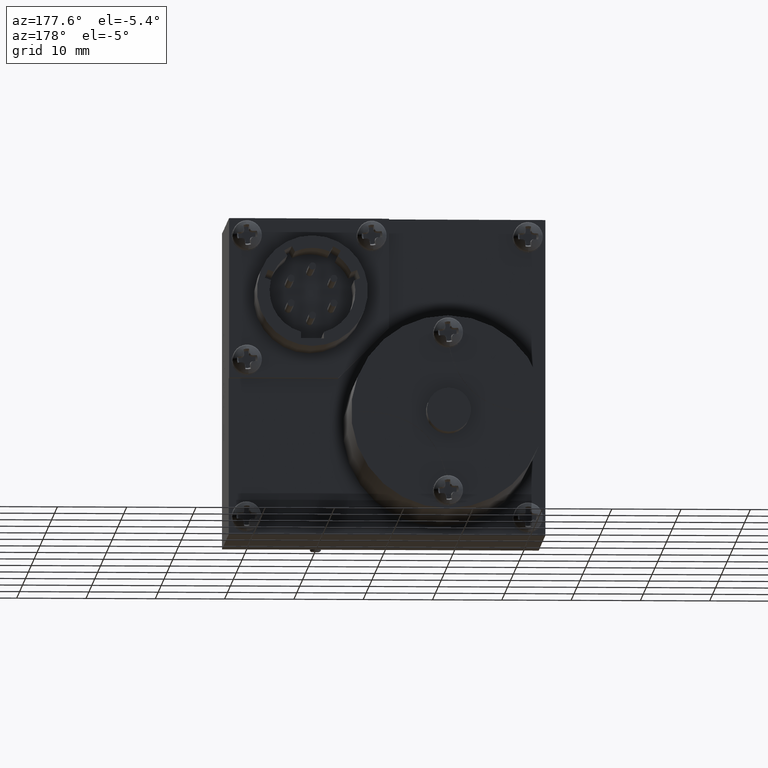
[diagram: clean part render]
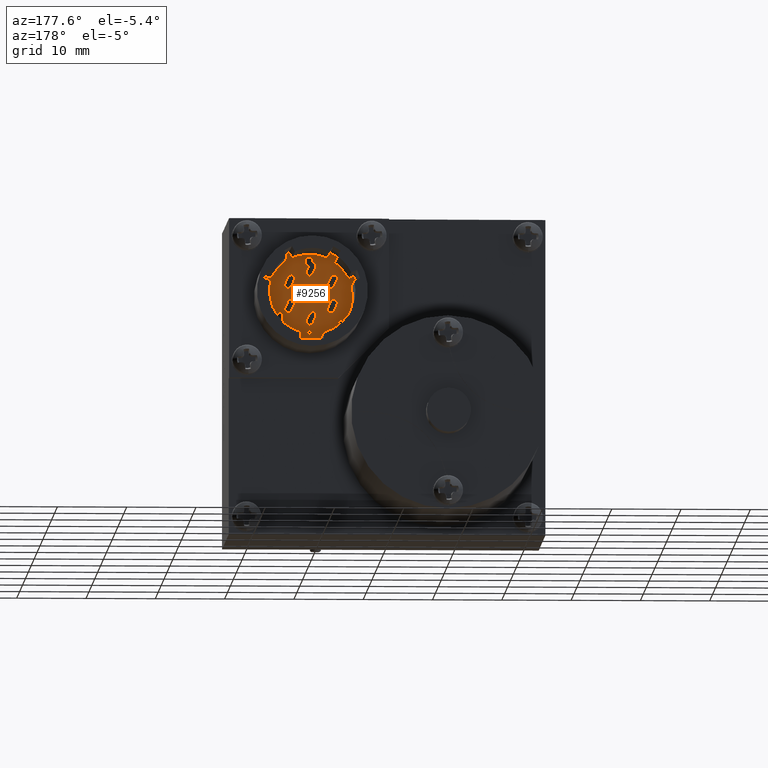
[diagram: same view with one face highlighted and labeled with its STEP entity id]
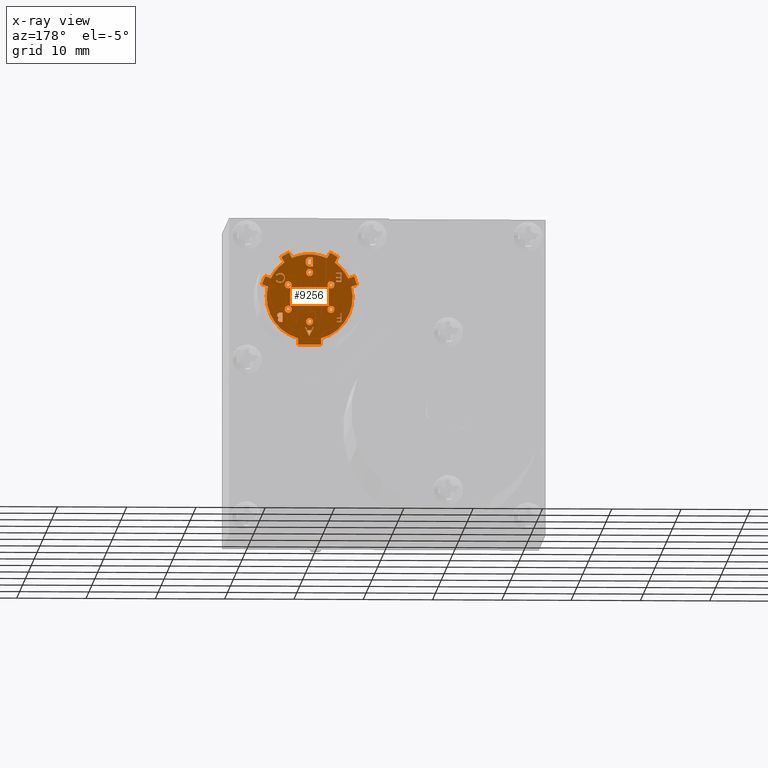
[diagram: x-ray of the same camera — body ghosted, the highlighted face saturated]
A machine part, auxiliary view. The second image highlights one B-rep face of the part: STEP entity #9256.
The next image is the same camera in x-ray: the body ghosted, the highlighted face saturated — about 0% of this face is hidden behind the body in this view.
In plain terms, the highlighted planar face has unit normal (0, 1, -0).
Its self-contained STEP definition (entity closure, byte-faithful):
#44 = CARTESIAN_POINT ( 'NONE',  ( 0.6254388475373486900, 2.156299212598425700, 0.5288083351102251800 ) ) ;
#84 = LINE ( 'NONE', #33230, #22924 ) ;
#91 = B_SPLINE_CURVE_WITH_KNOTS ( 'NONE', 3,
 ( #22074, #21633, #8894, #28598, #9168, #8606, #31849, #11993, #40944, #24763, #41235, #2380, #5670, #2524, #28034, #31580, #25184, #28465, #41900 ),
 .UNSPECIFIED., .F., .F.,
 ( 4, 1, 1, 1, 1, 1, 1, 1, 1, 1, 1, 1, 1, 1, 1, 1, 4 ),
 ( 0.0000000000000000000, 0.06455784592971913800, 0.1270135315497587500, 0.1879548102020904300, 0.2480139127896339400, 0.3077476818488371100, 0.3682345146974860800, 0.4294698439426697900, 0.4927434367465857200, 0.5562577687060831200, 0.6182167855431435200, 0.6796554755875559000, 0.7412455456206302800, 0.8034152647056972400, 0.8668154615439926900, 0.9323283119492661300, 1.000000000000000000 ),
 .UNSPECIFIED. ) ;
#217 = CARTESIAN_POINT ( 'NONE',  ( 0.6309539389493625800, 2.156299212598424800, 0.5399778704514258700 ) ) ;
#286 = ORIENTED_EDGE ( 'NONE', *, *, #26521, .T. ) ;
#319 = CARTESIAN_POINT ( 'NONE',  ( 0.6306621846583476700, 2.156299212598424800, 0.5396301625670340000 ) ) ;
#403 = CARTESIAN_POINT ( 'NONE',  ( 0.2896364379302512300, 2.156299212598424800, 0.3294953581584589300 ) ) ;
#540 = VERTEX_POINT ( 'NONE', #10127 ) ;
#584 = DIRECTION ( 'NONE',  ( -0.5000000000000001100, 0.0000000000000000000, -0.8660254037844386000 ) ) ;
#608 = ORIENTED_EDGE ( 'NONE', *, *, #17276, .T. ) ;
#664 = CARTESIAN_POINT ( 'NONE',  ( 0.5896954578754156600, 2.156299212598424400, 0.5474776115950246200 ) ) ;
#695 = VERTEX_POINT ( 'NONE', #31102 ) ;
#697 = DIRECTION ( 'NONE',  ( 0.3420201433256708200, 0.0000000000000000000, 0.9396926207859076500 ) ) ;
#796 = CARTESIAN_POINT ( 'NONE',  ( 0.0000000000000000000, 2.156299212598424800, 0.0000000000000000000 ) ) ;
#802 = VERTEX_POINT ( 'NONE', #27551 ) ;
#943 = DIRECTION ( 'NONE',  ( 0.0000000000000000000, 1.000000000000000000, -0.0000000000000000000 ) ) ;
#955 = FACE_BOUND ( 'NONE', #12591, .T. ) ;
#986 = AXIS2_PLACEMENT_3D ( 'NONE', #41976, #35455, #28795 ) ;
#1114 = VERTEX_POINT ( 'NONE', #5485 ) ;
#1162 = CARTESIAN_POINT ( 'NONE',  ( 0.6233649214869345600, 2.156299212598423900, 0.3104080160325715700 ) ) ;
#1223 = CARTESIAN_POINT ( 'NONE',  ( 0.6123199579130377300, 2.156299212598424800, 0.5259554345539899600 ) ) ;
#1261 = CARTESIAN_POINT ( 'NONE',  ( 0.4707156779284704100, 2.156299212598424800, 0.2738222510783443500 ) ) ;
#1266 = AXIS2_PLACEMENT_3D ( 'NONE', #37607, #27395, #31352 ) ;
#1298 = CARTESIAN_POINT ( 'NONE',  ( 0.6154450756764025000, 2.156299212598424800, 0.3036033208140313500 ) ) ;
#1307 = EDGE_CURVE ( 'NONE', #41318, #15060, #24166, .T. ) ;
#1313 = CARTESIAN_POINT ( 'NONE',  ( 0.5944891591214172000, 2.156299212598425300, 0.5387216882527948700 ) ) ;
#1369 = CARTESIAN_POINT ( 'NONE',  ( -0.08231242015288478500, 2.156299212598424800, 0.2261515157107138200 ) ) ;
#1388 = CARTESIAN_POINT ( 'NONE',  ( 0.3232564434701781200, 2.156299212598424800, 0.3945000000000010200 ) ) ;
#1401 = CARTESIAN_POINT ( 'NONE',  ( 0.6223682792911391400, 2.156299212598425700, 0.5791182292771455100 ) ) ;
#1436 = DIRECTION ( 'NONE',  ( 0.0000000000000000000, 0.0000000000000000000, 1.000000000000000000 ) ) ;
#1490 = DIRECTION ( 'NONE',  ( 0.9396926207859077600, 0.0000000000000000000, -0.3420201433256701000 ) ) ;
#1551 = CARTESIAN_POINT ( 'NONE',  ( 0.6294521910693703400, 2.156299212598424400, 0.5754040826270461200 ) ) ;
#1768 = CARTESIAN_POINT ( 'NONE',  ( 0.5879835315923457300, 2.156299212598425700, 0.5675778150894130700 ) ) ;
#1773 = CARTESIAN_POINT ( 'NONE',  ( 0.4445000000000000100, 2.156299212598424800, 0.4445000000000002300 ) ) ;
#1775 = CARTESIAN_POINT ( 'NONE',  ( 0.6309539389493625800, 2.156299212598424800, 0.5666872721608275900 ) ) ;
#1821 = CARTESIAN_POINT ( 'NONE',  ( 0.2936428481866614800, 2.156299212598424800, 0.5326294490400646000 ) ) ;
#1859 = VECTOR ( 'NONE', #13071, 39.37007874015748100 ) ;
#1880 = ORIENTED_EDGE ( 'NONE', *, *, #32514, .T. ) ;
#1913 = DIRECTION ( 'NONE',  ( 0.0000000000000000000, 0.0000000000000000000, 1.000000000000000000 ) ) ;
#1928 = EDGE_CURVE ( 'NONE', #5754, #29915, #26707, .T. ) ;
#1945 = CARTESIAN_POINT ( 'NONE',  ( 0.6099044197391483300, 2.156299212598425300, 0.5753221625501133700 ) ) ;
#1967 = DIRECTION ( 'NONE',  ( 0.0000000000000000000, 0.0000000000000000000, 1.000000000000000000 ) ) ;
#2089 = CARTESIAN_POINT ( 'NONE',  ( 0.4437126778257328200, 2.156299212598424800, 0.6719249816327012000 ) ) ;
#2146 = CARTESIAN_POINT ( 'NONE',  ( 0.5988794014390176300, 2.156299212598424400, 0.5778458982616273600 ) ) ;
#2165 = EDGE_LOOP ( 'NONE', ( #19028, #4628, #5912, #12901, #15903, #31720, #13605, #41819, #2681, #25873 ) ) ;
#2233 = CARTESIAN_POINT ( 'NONE',  ( 0.4574863919076939100, 2.156299212598424800, 0.6683670707326596600 ) ) ;
#2244 = CARTESIAN_POINT ( 'NONE',  ( 0.4664419243071124000, 2.156299212598424400, 0.6362110740359888700 ) ) ;
#2290 = CARTESIAN_POINT ( 'NONE',  ( 0.6107147104965909800, 2.156299212598423900, 0.5806981001655302500 ) ) ;
#2301 = VECTOR ( 'NONE', #21798, 39.37007874015748100 ) ;
#2311 = EDGE_CURVE ( 'NONE', #27285, #9266, #25622, .T. ) ;
#2380 = CARTESIAN_POINT ( 'NONE',  ( 0.5965007034972919000, 2.156299212598425700, 0.5303098540548111300 ) ) ;
#2417 = CARTESIAN_POINT ( 'NONE',  ( 0.6210178007674226300, 2.156299212598424800, 0.3247440624858722300 ) ) ;
#2441 = FACE_BOUND ( 'NONE', #31149, .T. ) ;
#2442 = B_SPLINE_CURVE_WITH_KNOTS ( 'NONE', 3,
 ( #36585, #30052, #18233, #31299, #24617, #33987, #41099, #18093, #8058, #31041, #31170, #14569, #2244, #37835, #40820, #27899, #40680, #34135, #4822 ),
 .UNSPECIFIED., .F., .F.,
 ( 4, 1, 1, 1, 1, 1, 1, 1, 1, 1, 1, 1, 1, 1, 1, 1, 4 ),
 ( 0.0000000000000000000, 0.06154496601632332400, 0.1216942964020299300, 0.1811548554526308000, 0.2398753889119560300, 0.2987019424504299100, 0.3576474237092027700, 0.4176048428493677700, 0.4784940407282898800, 0.5404070506371337900, 0.6023449938728042700, 0.6650043279232335000, 0.7285593088233749400, 0.7936505420268856700, 0.8605342675902660800, 0.9292359605619623400, 0.9999999999999998900 ),
 .UNSPECIFIED. ) ;
#2524 = CARTESIAN_POINT ( 'NONE',  ( 0.6012819505009853200, 2.156299212598424800, 0.5278587576496740500 ) ) ;
#2539 = B_SPLINE_CURVE_WITH_KNOTS ( 'NONE', 3,
 ( #27768, #20956, #27499, #36873, #40557, #37430, #1551, #40146, #24207, #14585, #27354, #1401, #31056, #34008, #8073, #30766, #7925, #24074, #40699 ),
 .UNSPECIFIED., .F., .F.,
 ( 4, 1, 1, 1, 1, 1, 1, 1, 1, 1, 1, 1, 1, 1, 1, 1, 4 ),
 ( 0.0000000000000000000, 0.06167423887742430600, 0.1230530616348041900, 0.1834750007317018400, 0.2437265005106129300, 0.3042789165122542500, 0.3648629209606841200, 0.4259462039686174900, 0.4873912299654085100, 0.5492203840754766900, 0.6111435886926036600, 0.6735285303101532500, 0.7369614566573027300, 0.8007852828728421200, 0.8660125956416160300, 0.9321007477905799400, 1.000000000000000000 ),
 .UNSPECIFIED. ) ;
#2551 = VECTOR ( 'NONE', #697, 39.37007874015748900 ) ;
#2567 = ORIENTED_EDGE ( 'NONE', *, *, #11928, .T. ) ;
#2578 = DIRECTION ( 'NONE',  ( 0.0000000000000000000, 1.000000000000000000, -0.0000000000000000000 ) ) ;
#2640 = CARTESIAN_POINT ( 'NONE',  ( 0.2936428481866614800, 2.156299212598424800, 0.5793709020315176400 ) ) ;
#2675 = VECTOR ( 'NONE', #39536, 39.37007874015748100 ) ;
#2681 = ORIENTED_EDGE ( 'NONE', *, *, #9566, .T. ) ;
#2786 = LINE ( 'NONE', #14380, #16947 ) ;
#2874 = CARTESIAN_POINT ( 'NONE',  ( 0.6089240624417846500, 2.156299212598424800, 0.5314731670324970300 ) ) ;
#2896 = CARTESIAN_POINT ( 'NONE',  ( 0.6250007660331419200, 2.156299212598425700, 0.5347255275978748400 ) ) ;
#3027 = ORIENTED_EDGE ( 'NONE', *, *, #7105, .T. ) ;
#3184 = EDGE_CURVE ( 'NONE', #11769, #32737, #2786, .T. ) ;
#3267 = ORIENTED_EDGE ( 'NONE', *, *, #20613, .T. ) ;
#3313 = ORIENTED_EDGE ( 'NONE', *, *, #10386, .F. ) ;
#3325 = CIRCLE ( 'NONE', #15808, 0.2439999999999999700 ) ;
#3380 = CARTESIAN_POINT ( 'NONE',  ( 0.6123512579931660300, 2.156299212598424800, 0.5753678277163830600 ) ) ;
#3411 = CARTESIAN_POINT ( 'NONE',  ( 0.3269607917151456900, 2.156299212598424800, 0.6980838806307879700 ) ) ;
#3533 = CARTESIAN_POINT ( 'NONE',  ( 0.2689366516054649300, 2.156299212598424800, 0.5539969704075858900 ) ) ;
#3542 = VERTEX_POINT ( 'NONE', #40301 ) ;
#3670 = CARTESIAN_POINT ( 'NONE',  ( 0.6290893034313027600, 2.156299212598423900, 0.5687342073348609100 ) ) ;
#3671 = CARTESIAN_POINT ( 'NONE',  ( 0.4509180068492043000, 2.156299212598424800, 0.6212640812464607100 ) ) ;
#3732 = CARTESIAN_POINT ( 'NONE',  ( 0.5889700981373967600, 2.156299212598424800, 0.5533847381063403700 ) ) ;
#3741 = ORIENTED_EDGE ( 'NONE', *, *, #11926, .T. ) ;
#3811 = CARTESIAN_POINT ( 'NONE',  ( 0.4367412390319683200, 2.156299212598424800, 0.6198670866868892800 ) ) ;
#3828 = CARTESIAN_POINT ( 'NONE',  ( 0.3232564434701781200, 2.156299212598424800, 0.3545000000000010400 ) ) ;
#3832 = CARTESIAN_POINT ( 'NONE',  ( 0.5657435565298217800, 2.156299212598424800, 0.3545000000000009800 ) ) ;
#3927 = VERTEX_POINT ( 'NONE', #25840 ) ;
#3944 = CARTESIAN_POINT ( 'NONE',  ( 0.6248693892823006200, 2.156299212598424800, 0.5720078116528375400 ) ) ;
#3954 = CARTESIAN_POINT ( 'NONE',  ( 0.5906285585428512300, 2.156299212598424800, 0.5447505987399685600 ) ) ;
#4033 = CARTESIAN_POINT ( 'NONE',  ( 0.6123512579931660300, 2.156299212598424800, 0.5753678277163830600 ) ) ;
#4092 = CARTESIAN_POINT ( 'NONE',  ( 0.6225876237137761800, 2.156299212598424800, 0.5732439022466283600 ) ) ;
#4230 = VECTOR ( 'NONE', #30467, 39.37007874015748100 ) ;
#4321 = CARTESIAN_POINT ( 'NONE',  ( 0.2936428481866614800, 2.156299212598424800, 0.5379713293819449200 ) ) ;
#4328 = EDGE_CURVE ( 'NONE', #27285, #14456, #5238, .T. ) ;
#4383 = DIRECTION ( 'NONE',  ( 0.0000000000000000000, 0.0000000000000000000, 1.000000000000000000 ) ) ;
#4479 = LINE ( 'NONE', #15500, #31817 ) ;
#4482 = CARTESIAN_POINT ( 'NONE',  ( 0.6189764858794899500, 2.156299212598424800, 0.3269994089096357500 ) ) ;
#4485 = CARTESIAN_POINT ( 'NONE',  ( 0.5657435565298218900, 2.156299212598424800, 0.5144999999999994000 ) ) ;
#4511 = EDGE_CURVE ( 'NONE', #11183, #12618, #37214, .T. ) ;
#4628 = ORIENTED_EDGE ( 'NONE', *, *, #3184, .T. ) ;
#4681 = DIRECTION ( 'NONE',  ( 0.8660254037844377100, 0.0000000000000000000, 0.5000000000000015500 ) ) ;
#4822 = CARTESIAN_POINT ( 'NONE',  ( 0.4680447377575302500, 2.156299212598424800, 0.6465594691732130500 ) ) ;
#4950 = CARTESIAN_POINT ( 'NONE',  ( 0.5889700981373967600, 2.156299212598424800, 0.5533847381063403700 ) ) ;
#4985 = LINE ( 'NONE', #17828, #25739 ) ;
#5033 = DIRECTION ( 'NONE',  ( 1.000000000000000000, 0.0000000000000000000, 0.0000000000000000000 ) ) ;
#5060 = CARTESIAN_POINT ( 'NONE',  ( 0.5843522963438392300, 2.156299212598424800, 0.5556748540550751100 ) ) ;
#5074 = CARTESIAN_POINT ( 'NONE',  ( 0.4343241180994105700, 2.156299212598424800, 0.2571288750099682800 ) ) ;
#5082 = CARTESIAN_POINT ( 'NONE',  ( 0.4680169339838616800, 2.156299212598425700, 0.6484718505338530300 ) ) ;
#5238 = LINE ( 'NONE', #1369, #24474 ) ;
#5239 = CARTESIAN_POINT ( 'NONE',  ( 0.5898524293676715700, 2.156299212598425700, 0.5600006635392820200 ) ) ;
#5240 = LINE ( 'NONE', #20514, #4230 ) ;
#5371 = CARTESIAN_POINT ( 'NONE',  ( 0.4662056765659557400, 2.156299212598424800, 0.6572415027544744600 ) ) ;
#5376 = CARTESIAN_POINT ( 'NONE',  ( 0.5940338546112087200, 2.156299212598424800, 0.5674998245256940300 ) ) ;
#5420 = CARTESIAN_POINT ( 'NONE',  ( 0.5929426637359730400, 2.156299212598424800, 0.5737451189407921600 ) ) ;
#5430 = VERTEX_POINT ( 'NONE', #40900 ) ;
#5480 = DIRECTION ( 'NONE',  ( 0.0000000000000000000, 0.0000000000000000000, 1.000000000000000000 ) ) ;
#5485 = CARTESIAN_POINT ( 'NONE',  ( 0.4460094813472738100, 2.156299212598424800, 0.2217389177450110000 ) ) ;
#5510 = DIRECTION ( 'NONE',  ( 0.0000000000000000000, 1.000000000000000000, -0.0000000000000000000 ) ) ;
#5516 = CARTESIAN_POINT ( 'NONE',  ( 0.4561918871047154200, 2.156299212598424800, 0.6691418788906636800 ) ) ;
#5612 = CIRCLE ( 'NONE', #12830, 0.01999999999999999000 ) ;
#5670 = CARTESIAN_POINT ( 'NONE',  ( 0.5988337681843843900, 2.156299212598424400, 0.5289747719714910100 ) ) ;
#5754 = VERTEX_POINT ( 'NONE', #12583 ) ;
#5759 = ORIENTED_EDGE ( 'NONE', *, *, #33100, .T. ) ;
#5777 = VERTEX_POINT ( 'NONE', #25235 ) ;
#5907 = VERTEX_POINT ( 'NONE', #403 ) ;
#5912 = ORIENTED_EDGE ( 'NONE', *, *, #12230, .T. ) ;
#5923 = CARTESIAN_POINT ( 'NONE',  ( 0.2249721791104049600, 2.156299212598424800, 0.5510060367090333600 ) ) ;
#6079 = CARTESIAN_POINT ( 'NONE',  ( 0.2034066723527848100, 2.156299212598424800, 0.5588552392556738200 ) ) ;
#6141 = DIRECTION ( 'NONE',  ( 1.000000000000000000, 0.0000000000000000000, 0.0000000000000000000 ) ) ;
#6147 = ORIENTED_EDGE ( 'NONE', *, *, #26643, .F. ) ;
#6190 = VECTOR ( 'NONE', #5033, 39.37007874015748100 ) ;
#6231 = EDGE_CURVE ( 'NONE', #7510, #40961, #91, .T. ) ;
#6400 = CARTESIAN_POINT ( 'NONE',  ( 0.4445000000000000100, 2.156299212598424800, 0.3045000000000002100 ) ) ;
#6411 = CARTESIAN_POINT ( 'NONE',  ( 0.2896364379302512300, 2.156299212598424800, 0.3294953581584589300 ) ) ;
#6450 = VERTEX_POINT ( 'NONE', #217 ) ;
#6454 = CARTESIAN_POINT ( 'NONE',  ( 0.6350438160861147100, 2.156299212598424800, 0.5368478624386053800 ) ) ;
#6481 = CARTESIAN_POINT ( 'NONE',  ( 0.2896364379302512300, 2.156299212598424800, 0.3081278367909375300 ) ) ;
#6508 = FACE_BOUND ( 'NONE', #8611, .T. ) ;
#6545 = B_SPLINE_CURVE_WITH_KNOTS ( 'NONE', 3,
 ( #30733, #21207, #5082, #8328, #31031, #18081, #21630, #5371, #31289, #28033, #37828, #28165, #15120, #24758, #34547, #8603, #2233, #5516, #11857, #18367, #40942, #41092, #24914, #21495, #2089, #32765, #16597 ),
 .UNSPECIFIED., .F., .F.,
 ( 4, 1, 1, 1, 1, 1, 1, 1, 1, 1, 1, 1, 1, 1, 1, 1, 1, 1, 1, 1, 1, 1, 1, 1, 4 ),
 ( 0.0000000000000000000, 0.04608068338724798800, 0.09080679960761507700, 0.1342952705290698700, 0.1770243856662450700, 0.2188227336826557300, 0.2602441163273724900, 0.3010798671134452500, 0.3416138942851566500, 0.3815834185517456000, 0.4201195913296161800, 0.4580746185423127400, 0.4947384876076570400, 0.5311946228937132200, 0.5669336984503783300, 0.6027126507379962900, 0.6383266061284350600, 0.6748532488548239000, 0.7134673707840592000, 0.7544418038483810000, 0.7978153607124983700, 0.8439894562081110600, 0.8930715698796484200, 0.9449633461781431500, 1.000000000000000000 ),
 .UNSPECIFIED. ) ;
#6584 = CARTESIAN_POINT ( 'NONE',  ( 0.6238519855985198400, 2.156299212598425300, 0.5340816624499202800 ) ) ;
#6599 = CARTESIAN_POINT ( 'NONE',  ( 0.6141029187648420200, 2.156299212598424800, 0.5259768107769730000 ) ) ;
#6641 = VERTEX_POINT ( 'NONE', #31245 ) ;
#6648 = CARTESIAN_POINT ( 'NONE',  ( 0.4579348118761200100, 2.156299212598424800, 0.2571288750099682800 ) ) ;
#6675 = EDGE_CURVE ( 'NONE', #3542, #30372, #24967, .T. ) ;
#6708 = CARTESIAN_POINT ( 'NONE',  ( 0.6115057509249899300, 2.156299212598425300, 0.5313033262427429000 ) ) ;
#6746 = VECTOR ( 'NONE', #4681, 39.37007874015748100 ) ;
#6754 = CARTESIAN_POINT ( 'NONE',  ( 0.6175611773862048600, 2.156299212598424800, 0.5263461522701541300 ) ) ;
#6763 = VERTEX_POINT ( 'NONE', #7693 ) ;
#6956 = VECTOR ( 'NONE', #40866, 39.37007874015748100 ) ;
#7051 = CARTESIAN_POINT ( 'NONE',  ( 0.4455892573997585800, 2.156299212598424800, 0.6203110811221991300 ) ) ;
#7078 = LINE ( 'NONE', #24192, #29423 ) ;
#7105 = EDGE_CURVE ( 'NONE', #33919, #17959, #40161, .T. ) ;
#7117 = ORIENTED_EDGE ( 'NONE', *, *, #36676, .T. ) ;
#7150 = CARTESIAN_POINT ( 'NONE',  ( 0.6350438160861147100, 2.156299212598424800, 0.5368478624386053800 ) ) ;
#7181 = VECTOR ( 'NONE', #584, 39.37007874015748100 ) ;
#7212 = EDGE_CURVE ( 'NONE', #38658, #39307, #11730, .T. ) ;
#7274 = CARTESIAN_POINT ( 'NONE',  ( 0.6244048615944636200, 2.156299212598424800, 0.3156920228219204400 ) ) ;
#7279 = CARTESIAN_POINT ( 'NONE',  ( 0.6282360628446637100, 2.156299212598424400, 0.5303839655410753600 ) ) ;
#7291 = CARTESIAN_POINT ( 'NONE',  ( 0.6249517348620922100, 2.156299212598425300, 0.3495009052560914500 ) ) ;
#7351 = DIRECTION ( 'NONE',  ( -0.9396926207859090900, 0.0000000000000000000, -0.3420201433256669900 ) ) ;
#7368 = VERTEX_POINT ( 'NONE', #25364 ) ;
#7388 = ORIENTED_EDGE ( 'NONE', *, *, #20570, .T. ) ;
#7407 = CARTESIAN_POINT ( 'NONE',  ( 0.6107212524231289100, 2.156299212598424800, 0.3028722589723866800 ) ) ;
#7510 = VERTEX_POINT ( 'NONE', #19506 ) ;
#7524 = DIRECTION ( 'NONE',  ( 0.0000000000000000000, 0.0000000000000000000, 1.000000000000000000 ) ) ;
#7544 = CARTESIAN_POINT ( 'NONE',  ( 0.2896364379302512300, 2.156299212598424800, 0.3241534778165784900 ) ) ;
#7594 = CARTESIAN_POINT ( 'NONE',  ( 0.4253096950224875000, 2.156299212598424800, 0.6198605008238540200 ) ) ;
#7664 = LINE ( 'NONE', #19487, #32505 ) ;
#7693 = CARTESIAN_POINT ( 'NONE',  ( 0.5094999999999999500, 2.156299212598424800, 0.1726631923377559000 ) ) ;
#7698 = EDGE_LOOP ( 'NONE', ( #11987, #22233 ) ) ;
#7702 = ORIENTED_EDGE ( 'NONE', *, *, #18955, .T. ) ;
#7737 = VECTOR ( 'NONE', #7766, 39.37007874015748100 ) ;
#7766 = DIRECTION ( 'NONE',  ( 1.000000000000000000, 0.0000000000000000000, 0.0000000000000000000 ) ) ;
#7852 = ORIENTED_EDGE ( 'NONE', *, *, #1307, .T. ) ;
#7903 = CARTESIAN_POINT ( 'NONE',  ( 0.5890257414901551900, 2.156299212598424800, 0.5556659718083070100 ) ) ;
#7925 = CARTESIAN_POINT ( 'NONE',  ( 0.6141413717010314500, 2.156299212598424800, 0.5806897992088336800 ) ) ;
#7969 = CARTESIAN_POINT ( 'NONE',  ( 0.2642625063063195900, 2.156299212598424800, 0.3027859564490572000 ) ) ;
#7970 = VERTEX_POINT ( 'NONE', #33338 ) ;
#8014 = B_SPLINE_CURVE_WITH_KNOTS ( 'NONE', 3,
 ( #31210, #37322, #2290, #34600, #18418, #31342, #11908, #15180, #37879, #41145, #2146, #24818, #28080, #21688, #24966, #5420, #8663, #17274, #24060 ),
 .UNSPECIFIED., .F., .F.,
 ( 4, 1, 1, 1, 1, 1, 1, 1, 1, 1, 1, 1, 1, 1, 1, 1, 4 ),
 ( 0.0000000000000000000, 0.06966280089907890500, 0.1377495622582720600, 0.2039167435177836100, 0.2687798623293358200, 0.3324137064772226800, 0.3947535404471391200, 0.4561800316591687100, 0.5169956491967189200, 0.5773959379659524500, 0.6371983435092744000, 0.6969991842614521300, 0.7567561942255578400, 0.8165539052726077400, 0.8769479965978702600, 0.9381317879205938200, 0.9999999999999998900 ),
 .UNSPECIFIED. ) ;
#8054 = CARTESIAN_POINT ( 'NONE',  ( 0.5893538416996856300, 2.156299212598424800, 0.5578798201794563600 ) ) ;
#8058 = CARTESIAN_POINT ( 'NONE',  ( 0.4628223245053411600, 2.156299212598425700, 0.6293587026527034400 ) ) ;
#8073 = CARTESIAN_POINT ( 'NONE',  ( 0.6175586388038920600, 2.156299212598425300, 0.5803332279397921400 ) ) ;
#8080 = LINE ( 'NONE', #6079, #40064 ) ;
#8150 = CIRCLE ( 'NONE', #25960, 0.01999999999999999000 ) ;
#8203 = DIRECTION ( 'NONE',  ( 0.0000000000000000000, 0.0000000000000000000, 1.000000000000000000 ) ) ;
#8227 = LINE ( 'NONE', #36713, #2675 ) ;
#8277 = CARTESIAN_POINT ( 'NONE',  ( 0.3795000000000000000, 2.156299212598424800, 0.2093170924578065800 ) ) ;
#8323 = EDGE_CURVE ( 'NONE', #40573, #10442, #11661, .T. ) ;
#8328 = CARTESIAN_POINT ( 'NONE',  ( 0.4678513191643778300, 2.156299212598424400, 0.6503415067184948900 ) ) ;
#8390 = EDGE_CURVE ( 'NONE', #41185, #11183, #8080, .T. ) ;
#8488 = ORIENTED_EDGE ( 'NONE', *, *, #29694, .F. ) ;
#8529 = FACE_BOUND ( 'NONE', #2165, .T. ) ;
#8546 = EDGE_CURVE ( 'NONE', #36971, #17219, #28867, .T. ) ;
#8572 = B_SPLINE_CURVE_WITH_KNOTS ( 'NONE', 3,
 ( #12611, #6708, #16307, #2874, #19417, #12476, #38450, #41715, #22291, #25545, #42126, #28800, #9377, #26649, #1313, #20200, #36408, #33131, #10448, #3954, #20054, #664, #13693, #36278, #26603, #16813, #23486 ),
 .UNSPECIFIED., .F., .F.,
 ( 4, 1, 1, 1, 1, 1, 1, 1, 1, 1, 1, 1, 1, 1, 1, 1, 1, 1, 1, 1, 1, 1, 1, 1, 4 ),
 ( 0.0000000000000000000, 0.04395490890619348200, 0.08750187479760454500, 0.1304626267314905300, 0.1727520205665169200, 0.2154030673796038500, 0.2576498297432403000, 0.3001527489572949900, 0.3431214895020868200, 0.3859251632064342700, 0.4276857274028013600, 0.4688179504865910300, 0.5094918001549956200, 0.5498830310733500100, 0.5899800229668856800, 0.6304052300068405700, 0.6708686260826397500, 0.7113839438381770500, 0.7516272580635853200, 0.7917755768651916200, 0.8324589188037426800, 0.8733190450172887400, 0.9145429556263505700, 0.9569235582098860600, 1.000000000000000000 ),
 .UNSPECIFIED. ) ;
#8603 = CARTESIAN_POINT ( 'NONE',  ( 0.4587191754013528200, 2.156299212598423900, 0.6675165267617063600 ) ) ;
#8606 = CARTESIAN_POINT ( 'NONE',  ( 0.5862576555175492700, 2.156299212598424800, 0.5424802200131960700 ) ) ;
#8611 = EDGE_LOOP ( 'NONE', ( #11944, #11724 ) ) ;
#8663 = CARTESIAN_POINT ( 'NONE',  ( 0.5918842935539404500, 2.156299212598426200, 0.5727162794950876300 ) ) ;
#8894 = CARTESIAN_POINT ( 'NONE',  ( 0.5843646275375160600, 2.156299212598425700, 0.5502499982383485300 ) ) ;
#8992 = DIRECTION ( 'NONE',  ( -1.000000000000000000, 0.0000000000000000000, 0.0000000000000000000 ) ) ;
#9024 = VERTEX_POINT ( 'NONE', #21821 ) ;
#9035 = DIRECTION ( 'NONE',  ( 0.9396926207859068700, 0.0000000000000000000, -0.3420201433256726500 ) ) ;
#9047 = CARTESIAN_POINT ( 'NONE',  ( 0.2936428481866614800, 2.156299212598424800, 0.5539969704075858900 ) ) ;
#9057 = FACE_BOUND ( 'NONE', #11667, .T. ) ;
#9153 = CARTESIAN_POINT ( 'NONE',  ( 0.2936428481866614800, 2.156299212598424800, 0.5847127823733979700 ) ) ;
#9168 = CARTESIAN_POINT ( 'NONE',  ( 0.5853737732467904100, 2.156299212598425300, 0.5449534900219442600 ) ) ;
#9218 = VERTEX_POINT ( 'NONE', #6648 ) ;
#9256 = ADVANCED_FACE ( 'NONE', ( #955, #24797, #9057, #13103, #16145, #10079, #28295, #6508, #37959, #13594, #33364, #2441, #8529 ), #36560, .T. ) ;
#9266 = VERTEX_POINT ( 'NONE', #30287 ) ;
#9377 = CARTESIAN_POINT ( 'NONE',  ( 0.5965908638902961400, 2.156299212598425300, 0.5367381604722392100 ) ) ;
#9408 = DIRECTION ( 'NONE',  ( 0.0000000000000000000, 0.0000000000000000000, 1.000000000000000000 ) ) ;
#9450 = CARTESIAN_POINT ( 'NONE',  ( 0.2689366516054649300, 2.156299212598424800, 0.3294953581584589300 ) ) ;
#9491 = LINE ( 'NONE', #37325, #6956 ) ;
#9566 = EDGE_CURVE ( 'NONE', #5907, #19748, #30879, .T. ) ;
#9591 = DIRECTION ( 'NONE',  ( 0.0000000000000000000, 0.0000000000000000000, 1.000000000000000000 ) ) ;
#9673 = VERTEX_POINT ( 'NONE', #32746 ) ;
#9686 = CARTESIAN_POINT ( 'NONE',  ( 0.6222634181186772500, 2.156299212598424800, 0.5333009632517662400 ) ) ;
#9699 = CARTESIAN_POINT ( 'NONE',  ( 0.6129183875550974200, 2.156299212598424800, 0.5259626092294493700 ) ) ;
#9782 = VERTEX_POINT ( 'NONE', #3732 ) ;
#9885 = CARTESIAN_POINT ( 'NONE',  ( 0.4493338975798421600, 2.156299212598425300, 0.6208862810919263400 ) ) ;
#10079 = FACE_BOUND ( 'NONE', #27003, .T. ) ;
#10127 = CARTESIAN_POINT ( 'NONE',  ( 0.5976954598850619000, 2.156299212598424800, 0.3027859564490572000 ) ) ;
#10134 = EDGE_CURVE ( 'NONE', #24962, #14389, #37106, .T. ) ;
#10173 = CARTESIAN_POINT ( 'NONE',  ( 0.6176747018064818700, 2.156299212598426200, 0.5748741974870185100 ) ) ;
#10206 = EDGE_CURVE ( 'NONE', #31948, #24962, #40640, .T. ) ;
#10304 = VERTEX_POINT ( 'NONE', #12707 ) ;
#10316 = CARTESIAN_POINT ( 'NONE',  ( 0.6303239951312492600, 2.156299212598424800, 0.5673788036405575900 ) ) ;
#10386 = EDGE_CURVE ( 'NONE', #39896, #24706, #14035, .T. ) ;
#10413 = CARTESIAN_POINT ( 'NONE',  ( 0.6273077146619821000, 2.156299212598425300, 0.3458162664306411200 ) ) ;
#10442 = VERTEX_POINT ( 'NONE', #3828 ) ;
#10448 = CARTESIAN_POINT ( 'NONE',  ( 0.5912168007956920500, 2.156299212598425700, 0.5434399578108244400 ) ) ;
#10636 = DIRECTION ( 'NONE',  ( 0.0000000000000000000, 0.0000000000000000000, 1.000000000000000000 ) ) ;
#10653 = VERTEX_POINT ( 'NONE', #18215 ) ;
#10667 = CARTESIAN_POINT ( 'NONE',  ( 0.6239656550779424400, 2.156299212598425700, 0.3120934206274755300 ) ) ;
#10674 = CARTESIAN_POINT ( 'NONE',  ( 0.6307800168200240500, 2.156299212598424800, 0.5322434741856302300 ) ) ;
#10752 = LINE ( 'NONE', #38772, #33088 ) ;
#10818 = CARTESIAN_POINT ( 'NONE',  ( 0.6093191773959155700, 2.156299212598424800, 0.3027936409493663400 ) ) ;
#10858 = CARTESIAN_POINT ( 'NONE',  ( 0.5909002697453027400, 2.156299212598424800, 0.5716013847409557900 ) ) ;
#10936 = EDGE_CURVE ( 'NONE', #20107, #31948, #33793, .T. ) ;
#10948 = CARTESIAN_POINT ( 'NONE',  ( 0.6143949620270297000, 2.156299212598424800, 0.3033547818841156300 ) ) ;
#10949 = LINE ( 'NONE', #41035, #12956 ) ;
#11032 = ORIENTED_EDGE ( 'NONE', *, *, #13207, .T. ) ;
#11051 = CARTESIAN_POINT ( 'NONE',  ( 0.7146418410072007400, 2.156299212598424800, 0.5162191448445968600 ) ) ;
#11055 = CARTESIAN_POINT ( 'NONE',  ( 0.2936428481866614800, 2.156299212598424800, 0.5326294490400646000 ) ) ;
#11080 = CARTESIAN_POINT ( 'NONE',  ( 0.2689366516054649300, 2.156299212598424800, 0.3548692897823905200 ) ) ;
#11089 = CARTESIAN_POINT ( 'NONE',  ( 0.6243850942085159600, 2.156299212598424800, 0.3150780176482858000 ) ) ;
#11105 = CARTESIAN_POINT ( 'NONE',  ( 0.6124002458785538000, 2.156299212598424800, 0.3548600007174054200 ) ) ;
#11181 = CARTESIAN_POINT ( 'NONE',  ( 0.4445000000000000100, 2.156299212598424800, 0.5845000000000002400 ) ) ;
#11183 = VERTEX_POINT ( 'NONE', #5923 ) ;
#11202 = CARTESIAN_POINT ( 'NONE',  ( 0.5657435565298218900, 2.156299212598424800, 0.5344999999999993100 ) ) ;
#11305 = EDGE_CURVE ( 'NONE', #27159, #35902, #10949, .T. ) ;
#11403 = CARTESIAN_POINT ( 'NONE',  ( 0.2936428481866614800, 2.156299212598424800, 0.5539969704075858900 ) ) ;
#11481 = CARTESIAN_POINT ( 'NONE',  ( 0.6243885934628780100, 2.156299212598424800, 0.3162672096623661600 ) ) ;
#11542 = CARTESIAN_POINT ( 'NONE',  ( 0.5442073065491072100, 2.156299212598424800, 0.6671981208288980700 ) ) ;
#11552 = CARTESIAN_POINT ( 'NONE',  ( 0.2689366516054649300, 2.156299212598424800, 0.3081278367909375300 ) ) ;
#11555 = LINE ( 'NONE', #16281, #39431 ) ;
#11661 = CIRCLE ( 'NONE', #37225, 0.01999999999999999000 ) ;
#11667 = EDGE_LOOP ( 'NONE', ( #38873, #31905 ) ) ;
#11724 = ORIENTED_EDGE ( 'NONE', *, *, #30697, .F. ) ;
#11730 = LINE ( 'NONE', #37301, #24929 ) ;
#11740 = VERTEX_POINT ( 'NONE', #12069 ) ;
#11769 = VERTEX_POINT ( 'NONE', #34768 ) ;
#11857 = CARTESIAN_POINT ( 'NONE',  ( 0.4547978970868778400, 2.156299212598425700, 0.6698177770382568500 ) ) ;
#11874 = DIRECTION ( 'NONE',  ( 0.0000000000000000000, 1.000000000000000000, -0.0000000000000000000 ) ) ;
#11908 = CARTESIAN_POINT ( 'NONE',  ( 0.6044380894649403800, 2.156299212598424800, 0.5798435410072148000 ) ) ;
#11920 = LINE ( 'NONE', #18237, #2301 ) ;
#11926 = EDGE_CURVE ( 'NONE', #32740, #9782, #8572, .T. ) ;
#11928 = EDGE_CURVE ( 'NONE', #38563, #39585, #27673, .T. ) ;
#11944 = ORIENTED_EDGE ( 'NONE', *, *, #1928, .F. ) ;
#11947 = DIRECTION ( 'NONE',  ( 0.0000000000000000000, 1.000000000000000000, -0.0000000000000000000 ) ) ;
#11987 = ORIENTED_EDGE ( 'NONE', *, *, #18492, .F. ) ;
#11993 = CARTESIAN_POINT ( 'NONE',  ( 0.5887625954750626000, 2.156299212598425700, 0.5378675491042851400 ) ) ;
#12037 = VECTOR ( 'NONE', #33883, 39.37007874015748100 ) ;
#12069 = CARTESIAN_POINT ( 'NONE',  ( 0.2836595215259235500, 2.156299212598424800, 0.6730838806307878300 ) ) ;
#12089 = DIRECTION ( 'NONE',  ( 0.0000000000000000000, 0.0000000000000000000, 1.000000000000000000 ) ) ;
#12119 = VECTOR ( 'NONE', #13177, 39.37007874015748100 ) ;
#12203 = ORIENTED_EDGE ( 'NONE', *, *, #2311, .F. ) ;
#12230 = EDGE_CURVE ( 'NONE', #32737, #9024, #11920, .T. ) ;
#12268 = EDGE_CURVE ( 'NONE', #17959, #16254, #3325, .T. ) ;
#12287 = DIRECTION ( 'NONE',  ( 0.0000000000000000000, 0.0000000000000000000, 1.000000000000000000 ) ) ;
#12410 = CIRCLE ( 'NONE', #37231, 0.01999999999999992400 ) ;
#12436 = CARTESIAN_POINT ( 'NONE',  ( 0.6284112718508738600, 2.156299212598424800, 0.3400852186018349400 ) ) ;
#12463 = EDGE_LOOP ( 'NONE', ( #7702, #41731, #608, #21168, #25255, #39980 ) ) ;
#12471 = DIRECTION ( 'NONE',  ( 0.0000000000000000000, 0.0000000000000000000, 1.000000000000000000 ) ) ;
#12476 = CARTESIAN_POINT ( 'NONE',  ( 0.6059266737907432800, 2.156299212598425700, 0.5320243059204141600 ) ) ;
#12536 = DIRECTION ( 'NONE',  ( 0.0000000000000000000, 1.000000000000000000, -0.0000000000000000000 ) ) ;
#12583 = CARTESIAN_POINT ( 'NONE',  ( 0.4445000000000000100, 2.156299212598424800, 0.3245000000000001800 ) ) ;
#12591 = EDGE_LOOP ( 'NONE', ( #36552, #19196, #25651, #22654, #22040, #24792, #29884 ) ) ;
#12611 = CARTESIAN_POINT ( 'NONE',  ( 0.6120278238318411800, 2.156299212598424800, 0.5312973148958702900 ) ) ;
#12618 = VERTEX_POINT ( 'NONE', #37235 ) ;
#12619 = LINE ( 'NONE', #15552, #24307 ) ;
#12625 = CIRCLE ( 'NONE', #12638, 0.01999999999999985500 ) ;
#12638 = AXIS2_PLACEMENT_3D ( 'NONE', #28659, #31917, #12471 ) ;
#12677 = EDGE_CURVE ( 'NONE', #39271, #3927, #25072, .T. ) ;
#12707 = CARTESIAN_POINT ( 'NONE',  ( 0.4213032847660772600, 2.156299212598424800, 0.2738222510783443500 ) ) ;
#12830 = AXIS2_PLACEMENT_3D ( 'NONE', #11181, #40823, #8203 ) ;
#12901 = ORIENTED_EDGE ( 'NONE', *, *, #26962, .T. ) ;
#12925 = CARTESIAN_POINT ( 'NONE',  ( 0.6192220550950493500, 2.156299212598425700, 0.5266603794995157200 ) ) ;
#12926 = LINE ( 'NONE', #36377, #37833 ) ;
#12944 = CARTESIAN_POINT ( 'NONE',  ( 0.5976954598850619000, 2.156299212598424800, 0.3027859564490572000 ) ) ;
#12956 = VECTOR ( 'NONE', #27974, 39.37007874015748100 ) ;
#12974 = CARTESIAN_POINT ( 'NONE',  ( 0.4358265219455644300, 2.156299212598424800, 0.6198605008238540200 ) ) ;
#13071 = DIRECTION ( 'NONE',  ( -0.4285960263555423400, 0.0000000000000000000, 0.9034962347415949100 ) ) ;
#13103 = FACE_BOUND ( 'NONE', #7698, .T. ) ;
#13177 = DIRECTION ( 'NONE',  ( 0.0000000000000000000, 0.0000000000000000000, 1.000000000000000000 ) ) ;
#13190 = CARTESIAN_POINT ( 'NONE',  ( 0.4264051978269747200, 2.156299212598424800, 0.2738222510783443500 ) ) ;
#13207 = EDGE_CURVE ( 'NONE', #5777, #7970, #8014, .T. ) ;
#13263 = DIRECTION ( 'NONE',  ( 0.0000000000000000000, 0.0000000000000000000, 1.000000000000000000 ) ) ;
#13304 = VECTOR ( 'NONE', #14833, 39.37007874015748100 ) ;
#13395 = AXIS2_PLACEMENT_3D ( 'NONE', #1773, #24585, #1913 ) ;
#13482 = VERTEX_POINT ( 'NONE', #21247 ) ;
#13495 = ORIENTED_EDGE ( 'NONE', *, *, #22564, .T. ) ;
#13562 = CARTESIAN_POINT ( 'NONE',  ( 0.2936428481866614800, 2.156299212598424800, 0.5593388507494663200 ) ) ;
#13583 = B_SPLINE_CURVE_WITH_KNOTS ( 'NONE', 3,
 ( #16045, #9699, #6599, #26137, #6754, #12925, #35660, #16194, #19454, #44, #17179, #7279, #13636, #10674, #20294, #36228, #20145, #14052, #7150 ),
 .UNSPECIFIED., .F., .F.,
 ( 4, 1, 1, 1, 1, 1, 1, 1, 1, 1, 1, 1, 1, 1, 1, 1, 4 ),
 ( 0.0000000000000000000, 0.06854753670890484400, 0.1356829456230482800, 0.2012149895263279600, 0.2656822347546994900, 0.3292668348172594900, 0.3923954278443304000, 0.4550697616521464700, 0.5171268500645086500, 0.5787900352866531800, 0.6397398633435433800, 0.7001915036663108900, 0.7598062425966715100, 0.8196283192750103400, 0.8793547910462762300, 0.9395116077646640300, 1.000000000000000000 ),
 .UNSPECIFIED. ) ;
#13594 = FACE_BOUND ( 'NONE', #12463, .T. ) ;
#13605 = ORIENTED_EDGE ( 'NONE', *, *, #11305, .T. ) ;
#13636 = CARTESIAN_POINT ( 'NONE',  ( 0.6295376232420991600, 2.156299212598425300, 0.5312812245515581300 ) ) ;
#13687 = DIRECTION ( 'NONE',  ( -0.3420201433256696600, 0.0000000000000000000, 0.9396926207859079800 ) ) ;
#13693 = CARTESIAN_POINT ( 'NONE',  ( 0.5893692001844731400, 2.156299212598424800, 0.5488993789438825200 ) ) ;
#13755 = ORIENTED_EDGE ( 'NONE', *, *, #29313, .T. ) ;
#13796 = ORIENTED_EDGE ( 'NONE', *, *, #7212, .F. ) ;
#13837 = CARTESIAN_POINT ( 'NONE',  ( 0.3232564434701782300, 2.156299212598424800, 0.4944999999999996100 ) ) ;
#13905 = DIRECTION ( 'NONE',  ( 0.0000000000000000000, 1.000000000000000000, -0.0000000000000000000 ) ) ;
#14000 = DIRECTION ( 'NONE',  ( 0.0000000000000000000, 0.0000000000000000000, -1.000000000000000000 ) ) ;
#14035 = CIRCLE ( 'NONE', #38324, 0.01999999999999985500 ) ;
#14045 = CARTESIAN_POINT ( 'NONE',  ( 0.6120344787719462800, 2.156299212598424800, 0.3029794564408189200 ) ) ;
#14052 = CARTESIAN_POINT ( 'NONE',  ( 0.6347248376945328100, 2.156299212598425700, 0.5364270294435968800 ) ) ;
#14059 = LINE ( 'NONE', #31820, #41465 ) ;
#14132 = ORIENTED_EDGE ( 'NONE', *, *, #38170, .T. ) ;
#14278 = EDGE_CURVE ( 'NONE', #25289, #29584, #84, .T. ) ;
#14359 = CARTESIAN_POINT ( 'NONE',  ( 0.6350438160861147100, 2.156299212598424800, 0.5368478624386053800 ) ) ;
#14368 = CARTESIAN_POINT ( 'NONE',  ( 0.6136087243177130700, 2.156299212598424800, 0.3548418875493259400 ) ) ;
#14380 = CARTESIAN_POINT ( 'NONE',  ( 0.2642625063063195900, 2.156299212598424800, 0.3548692897823905200 ) ) ;
#14389 = VERTEX_POINT ( 'NONE', #30130 ) ;
#14395 = CARTESIAN_POINT ( 'NONE',  ( 0.5976954598850619000, 2.156299212598424800, 0.3548692897823905200 ) ) ;
#14418 = VERTEX_POINT ( 'NONE', #20459 ) ;
#14456 = VERTEX_POINT ( 'NONE', #39908 ) ;
#14471 = EDGE_LOOP ( 'NONE', ( #17360, #28194 ) ) ;
#14494 = CARTESIAN_POINT ( 'NONE',  ( 0.6227296364329162300, 2.156299212598423900, 0.3516013726733943600 ) ) ;
#14525 = EDGE_CURVE ( 'NONE', #27248, #802, #10752, .T. ) ;
#14529 = CARTESIAN_POINT ( 'NONE',  ( 0.1863056651864997100, 2.156299212598424800, 0.5118706082163787500 ) ) ;
#14552 = CARTESIAN_POINT ( 'NONE',  ( -0.2205389893705567400, 2.156299212598424800, 0.3819847346396952300 ) ) ;
#14551 = CARTESIAN_POINT ( 'NONE',  ( 0.2689366516054649300, 2.156299212598424800, 0.5539969704075858900 ) ) ;
#14564 = CARTESIAN_POINT ( 'NONE',  ( 0.5926853942337650900, 2.156299212598424400, 0.5657674351728433400 ) ) ;
#14569 = CARTESIAN_POINT ( 'NONE',  ( 0.4657357636919913200, 2.156299212598424800, 0.6343694489160463000 ) ) ;
#14585 = CARTESIAN_POINT ( 'NONE',  ( 0.6253555270253896600, 2.156299212598426200, 0.5778775891757094200 ) ) ;
#14644 = CARTESIAN_POINT ( 'NONE',  ( 0.6183848128498055100, 2.156299212598424800, 0.3267722511873050200 ) ) ;
#14717 = CARTESIAN_POINT ( 'NONE',  ( 0.5972880247816009200, 2.156299212598424800, 0.5705706083507912100 ) ) ;
#14743 = CARTESIAN_POINT ( 'NONE',  ( 0.2689366516054649300, 2.156299212598424800, 0.3241534778165784900 ) ) ;
#14833 = DIRECTION ( 'NONE',  ( 0.0000000000000000000, 0.0000000000000000000, 1.000000000000000000 ) ) ;
#14858 = AXIS2_PLACEMENT_3D ( 'NONE', #37967, #5510, #18795 ) ;
#14946 = CARTESIAN_POINT ( 'NONE',  ( 0.2642625063063195900, 2.156299212598424800, 0.5326294490400646000 ) ) ;
#14960 = CARTESIAN_POINT ( 'NONE',  ( 0.5859072893901516900, 2.156299212598425700, 0.5631151939933690700 ) ) ;
#14979 = EDGE_CURVE ( 'NONE', #39307, #25954, #17296, .T. ) ;
#15060 = VERTEX_POINT ( 'NONE', #13190 ) ;
#15120 = CARTESIAN_POINT ( 'NONE',  ( 0.4620303015907256700, 2.156299212598424800, 0.6643575058423878400 ) ) ;
#15154 = ORIENTED_EDGE ( 'NONE', *, *, #34158, .T. ) ;
#15180 = CARTESIAN_POINT ( 'NONE',  ( 0.6029862950528744900, 2.156299212598425300, 0.5794377187360062500 ) ) ;
#15212 = VERTEX_POINT ( 'NONE', #23666 ) ;
#15284 = EDGE_LOOP ( 'NONE', ( #37424, #31722, #24408, #20433, #19115, #18230, #7852, #41312 ) ) ;
#15298 = EDGE_CURVE ( 'NONE', #30168, #22952, #19054, .T. ) ;
#15346 = LINE ( 'NONE', #14552, #6746 ) ;
#15500 = CARTESIAN_POINT ( 'NONE',  ( 0.6117804959427541900, 2.156299212598424800, 0.3548692897823905200 ) ) ;
#15552 = CARTESIAN_POINT ( 'NONE',  ( 0.5094999999999999500, 2.156299212598424800, 0.0000000000000000000 ) ) ;
#15611 = ORIENTED_EDGE ( 'NONE', *, *, #28855, .T. ) ;
#15640 = VECTOR ( 'NONE', #30061, 39.37007874015748100 ) ;
#15692 = CARTESIAN_POINT ( 'NONE',  ( 0.6251176645358781400, 2.156299212598425300, 0.3309345868816171400 ) ) ;
#15808 = AXIS2_PLACEMENT_3D ( 'NONE', #38262, #12536, #12287 ) ;
#15903 = ORIENTED_EDGE ( 'NONE', *, *, #34280, .T. ) ;
#16004 = CARTESIAN_POINT ( 'NONE',  ( 0.2896364379302512300, 2.156299212598424800, 0.3027859564490572000 ) ) ;
#16020 = VERTEX_POINT ( 'NONE', #20281 ) ;
#16032 = CARTESIAN_POINT ( 'NONE',  ( 0.6281784303094639600, 2.156299212598424400, 0.5370607917095797700 ) ) ;
#16045 = CARTESIAN_POINT ( 'NONE',  ( 0.6123199579130377300, 2.156299212598424800, 0.5259554345539899600 ) ) ;
#16088 = VERTEX_POINT ( 'NONE', #29956 ) ;
#16145 = FACE_BOUND ( 'NONE', #26628, .T. ) ;
#16164 = CIRCLE ( 'NONE', #1266, 0.01999999999999999000 ) ;
#16194 = CARTESIAN_POINT ( 'NONE',  ( 0.6224203118968569800, 2.156299212598424800, 0.5275584095558574200 ) ) ;
#16254 = VERTEX_POINT ( 'NONE', #27533 ) ;
#16272 = EDGE_CURVE ( 'NONE', #11740, #12618, #9491, .T. ) ;
#16280 = ORIENTED_EDGE ( 'NONE', *, *, #14979, .F. ) ;
#16281 = CARTESIAN_POINT ( 'NONE',  ( 0.4579348118761200100, 2.156299212598424800, 0.2571288750099682800 ) ) ;
#16307 = CARTESIAN_POINT ( 'NONE',  ( 0.6104664504403041200, 2.156299212598424800, 0.5313152931455190600 ) ) ;
#16310 = EDGE_CURVE ( 'NONE', #10442, #40573, #37914, .T. ) ;
#16389 = CARTESIAN_POINT ( 'NONE',  ( 0.6132605241984276900, 2.156299212598424800, 0.5753426970653280300 ) ) ;
#16442 = VECTOR ( 'NONE', #17312, 39.37007874015748100 ) ;
#16597 = CARTESIAN_POINT ( 'NONE',  ( 0.4414501030085987200, 2.156299212598423900, 0.6719438341571875000 ) ) ;
#16813 = CARTESIAN_POINT ( 'NONE',  ( 0.5889761003129179200, 2.156299212598424800, 0.5528730959105737600 ) ) ;
#16947 = VECTOR ( 'NONE', #20601, 39.37007874015748100 ) ;
#16979 = CARTESIAN_POINT ( 'NONE',  ( 0.5620392082848544300, 2.156299212598424800, 0.6980838806307879700 ) ) ;
#16986 = VECTOR ( 'NONE', #36618, 39.37007874015748100 ) ;
#17164 = CARTESIAN_POINT ( 'NONE',  ( 0.2896364379302512300, 2.156299212598424800, 0.3081278367909375300 ) ) ;
#17178 = ORIENTED_EDGE ( 'NONE', *, *, #6675, .T. ) ;
#17179 = CARTESIAN_POINT ( 'NONE',  ( 0.6268661771525319000, 2.156299212598424800, 0.5295593282859220000 ) ) ;
#17219 = VERTEX_POINT ( 'NONE', #37720 ) ;
#17274 = CARTESIAN_POINT ( 'NONE',  ( 0.5912294916939439000, 2.156299212598424800, 0.5719743917965405300 ) ) ;
#17276 = EDGE_CURVE ( 'NONE', #22952, #25289, #29716, .T. ) ;
#17296 = LINE ( 'NONE', #35916, #7181 ) ;
#17312 = DIRECTION ( 'NONE',  ( 0.0000000000000000000, 0.0000000000000000000, 1.000000000000000000 ) ) ;
#17328 = CARTESIAN_POINT ( 'NONE',  ( 0.6083550001587660900, 2.156299212598424800, 0.3027885717824168000 ) ) ;
#17360 = ORIENTED_EDGE ( 'NONE', *, *, #22367, .F. ) ;
#17367 = LINE ( 'NONE', #13562, #36159 ) ;
#17414 = CIRCLE ( 'NONE', #18872, 0.2440000000000001100 ) ;
#17430 = VERTEX_POINT ( 'NONE', #3533 ) ;
#17579 = CARTESIAN_POINT ( 'NONE',  ( 0.6244048615944636200, 2.156299212598424800, 0.3156920228219204400 ) ) ;
#17605 = DIRECTION ( 'NONE',  ( 0.0000000000000000000, 1.000000000000000000, -0.0000000000000000000 ) ) ;
#17645 = LINE ( 'NONE', #1775, #25267 ) ;
#17670 = VERTEX_POINT ( 'NONE', #38655 ) ;
#17754 = CARTESIAN_POINT ( 'NONE',  ( 0.6214570805560929400, 2.156299212598424800, 0.3524870230704378900 ) ) ;
#17791 = EDGE_CURVE ( 'NONE', #9266, #16088, #12926, .T. ) ;
#17819 = EDGE_CURVE ( 'NONE', #14418, #27233, #12410, .T. ) ;
#17828 = CARTESIAN_POINT ( 'NONE',  ( 0.2689366516054649300, 2.156299212598424800, 0.5593388507494663200 ) ) ;
#17959 = VERTEX_POINT ( 'NONE', #8277 ) ;
#17969 = DIRECTION ( 'NONE',  ( 0.0000000000000000000, 0.0000000000000000000, 1.000000000000000000 ) ) ;
#18054 = CARTESIAN_POINT ( 'NONE',  ( 0.5893246875975711700, 2.156299212598425700, 0.5696654040962351200 ) ) ;
#18081 = CARTESIAN_POINT ( 'NONE',  ( 0.4672379186006346800, 2.156299212598424800, 0.6539057815903285300 ) ) ;
#18088 = CARTESIAN_POINT ( 'NONE',  ( 0.6031051204596458200, 2.156299212598424800, 0.5738331293402854100 ) ) ;
#18093 = CARTESIAN_POINT ( 'NONE',  ( 0.4616375815916050600, 2.156299212598425300, 0.6278916142566551800 ) ) ;
#18127 = LINE ( 'NONE', #11080, #12037 ) ;
#18139 = CARTESIAN_POINT ( 'NONE',  ( 0.4213032847660772600, 2.156299212598424800, 0.2738222510783443500 ) ) ;
#18176 = AXIS2_PLACEMENT_3D ( 'NONE', #796, #943, #4383 ) ;
#18215 = CARTESIAN_POINT ( 'NONE',  ( 0.6309539389493625800, 2.156299212598424800, 0.5666872721608275900 ) ) ;
#18230 = ORIENTED_EDGE ( 'NONE', *, *, #28516, .T. ) ;
#18233 = CARTESIAN_POINT ( 'NONE',  ( 0.4541471001400316800, 2.156299212598424800, 0.6224221693179272700 ) ) ;
#18237 = CARTESIAN_POINT ( 'NONE',  ( 0.2642625063063195900, 2.156299212598424800, 0.3027859564490572000 ) ) ;
#18270 = CARTESIAN_POINT ( 'NONE',  ( 0.6244048615944636200, 2.156299212598424800, 0.3156920228219204400 ) ) ;
#18309 = EDGE_CURVE ( 'NONE', #35902, #5907, #21529, .T. ) ;
#18352 = LINE ( 'NONE', #26065, #38682 ) ;
#18367 = CARTESIAN_POINT ( 'NONE',  ( 0.4532780181256871900, 2.156299212598423900, 0.6703896521841441500 ) ) ;
#18418 = CARTESIAN_POINT ( 'NONE',  ( 0.6074872055499575000, 2.156299212598424400, 0.5804028337321829300 ) ) ;
#18484 = ORIENTED_EDGE ( 'NONE', *, *, #28640, .T. ) ;
#18492 = EDGE_CURVE ( 'NONE', #27233, #14418, #27069, .T. ) ;
#18685 = CARTESIAN_POINT ( 'NONE',  ( 0.6230085157129339200, 2.156299212598424800, 0.3290381484748640100 ) ) ;
#18795 = DIRECTION ( 'NONE',  ( 0.0000000000000000000, 0.0000000000000000000, 1.000000000000000000 ) ) ;
#18819 = ORIENTED_EDGE ( 'NONE', *, *, #16310, .F. ) ;
#18844 = CARTESIAN_POINT ( 'NONE',  ( 0.6188553001352962200, 2.156299212598424800, 0.3264597464076828300 ) ) ;
#18872 = AXIS2_PLACEMENT_3D ( 'NONE', #34198, #17605, #40325 ) ;
#18955 = EDGE_CURVE ( 'NONE', #7368, #30168, #6545, .T. ) ;
#18958 = CARTESIAN_POINT ( 'NONE',  ( 0.6277961763710803200, 2.156299212598425300, 0.3357590493197872300 ) ) ;
#19027 = VECTOR ( 'NONE', #35407, 39.37007874015748100 ) ;
#19028 = ORIENTED_EDGE ( 'NONE', *, *, #28131, .T. ) ;
#19054 = LINE ( 'NONE', #27923, #23585 ) ;
#19115 = ORIENTED_EDGE ( 'NONE', *, *, #27048, .T. ) ;
#19118 = VERTEX_POINT ( 'NONE', #14359 ) ;
#19184 = CARTESIAN_POINT ( 'NONE',  ( 0.6078575525666859400, 2.156299212598424800, 0.3027859564490572000 ) ) ;
#19196 = ORIENTED_EDGE ( 'NONE', *, *, #27143, .T. ) ;
#19301 = CARTESIAN_POINT ( 'NONE',  ( 0.6175693305092502200, 2.156299212598424800, 0.5318032045268791300 ) ) ;
#19412 = ORIENTED_EDGE ( 'NONE', *, *, #4328, .T. ) ;
#19417 = CARTESIAN_POINT ( 'NONE',  ( 0.6074104753713774900, 2.156299212598424400, 0.5316950600391126000 ) ) ;
#19454 = CARTESIAN_POINT ( 'NONE',  ( 0.6239545185466275300, 2.156299212598424400, 0.5281393103194824700 ) ) ;
#19487 = CARTESIAN_POINT ( 'NONE',  ( 0.2689366516054649300, 2.156299212598424800, 0.3294953581584589300 ) ) ;
#19506 = CARTESIAN_POINT ( 'NONE',  ( 0.5842959528382515300, 2.156299212598424800, 0.5530300038648874300 ) ) ;
#19631 = CARTESIAN_POINT ( 'NONE',  ( 0.6309539389493625800, 2.156299212598424800, 0.5666872721608275900 ) ) ;
#19655 = ORIENTED_EDGE ( 'NONE', *, *, #27827, .T. ) ;
#19748 = VERTEX_POINT ( 'NONE', #9450 ) ;
#19957 = CARTESIAN_POINT ( 'NONE',  ( 0.4414501030085987200, 2.156299212598423900, 0.6719438341571875000 ) ) ;
#20054 = CARTESIAN_POINT ( 'NONE',  ( 0.5901076489862199200, 2.156299212598425700, 0.5460914336065023600 ) ) ;
#20083 = CARTESIAN_POINT ( 'NONE',  ( 0.2689366516054649300, 2.156299212598424800, 0.5593388507494663200 ) ) ;
#20107 = VERTEX_POINT ( 'NONE', #17579 ) ;
#20145 = CARTESIAN_POINT ( 'NONE',  ( 0.6340886294356918900, 2.156299212598425700, 0.5355876703080469900 ) ) ;
#20158 = CARTESIAN_POINT ( 'NONE',  ( 0.6281571231940592500, 2.156299212598424800, 0.3430635859348517600 ) ) ;
#20200 = CARTESIAN_POINT ( 'NONE',  ( 0.5935548241391968000, 2.156299212598424800, 0.5398134195264420200 ) ) ;
#20214 = DIRECTION ( 'NONE',  ( -1.000000000000000000, 0.0000000000000000000, 0.0000000000000000000 ) ) ;
#20231 = CARTESIAN_POINT ( 'NONE',  ( 0.3795000000000000000, 2.156299212598424800, 0.1726631923377559000 ) ) ;
#20272 = LINE ( 'NONE', #18139, #36079 ) ;
#20281 = CARTESIAN_POINT ( 'NONE',  ( 0.4445000000000000100, 2.156299212598424800, 0.6885000000000003300 ) ) ;
#20290 = CARTESIAN_POINT ( 'NONE',  ( 0.6132592372890673900, 2.156299212598424800, 0.3031495471051671700 ) ) ;
#20294 = CARTESIAN_POINT ( 'NONE',  ( 0.6319424604372275700, 2.156299212598424800, 0.5332910717941926600 ) ) ;
#20433 = ORIENTED_EDGE ( 'NONE', *, *, #14525, .T. ) ;
#20457 = CARTESIAN_POINT ( 'NONE',  ( 0.6183848128498055100, 2.156299212598424800, 0.3267722511873050200 ) ) ;
#20459 = CARTESIAN_POINT ( 'NONE',  ( 0.5657435565298218900, 2.156299212598424800, 0.4944999999999994400 ) ) ;
#20514 = CARTESIAN_POINT ( 'NONE',  ( 0.1625514891035166600, 2.156299212598424800, -0.09384914599109066300 ) ) ;
#20538 = DIRECTION ( 'NONE',  ( -0.4188422247446068100, 0.0000000000000000000, -0.9080590238365500200 ) ) ;
#20550 = EDGE_CURVE ( 'NONE', #15060, #10304, #8227, .T. ) ;
#20569 = CARTESIAN_POINT ( 'NONE',  ( 0.6202787358290259300, 2.156299212598425700, 0.3061200563555523400 ) ) ;
#20570 = EDGE_CURVE ( 'NONE', #33251, #36322, #17367, .T. ) ;
#20585 = CARTESIAN_POINT ( 'NONE',  ( 0.6283967354517172600, 2.156299212598424800, 0.3405936541988868200 ) ) ;
#20590 = DIRECTION ( 'NONE',  ( -0.9396926207859071000, 0.0000000000000000000, -0.3420201433256721000 ) ) ;
#20601 = DIRECTION ( 'NONE',  ( 0.0000000000000000000, 0.0000000000000000000, -1.000000000000000000 ) ) ;
#20613 = EDGE_CURVE ( 'NONE', #11740, #33803, #15346, .T. ) ;
#20746 = B_SPLINE_CURVE_WITH_KNOTS ( 'NONE', 3,
 ( #4950, #27618, #7903, #8054, #5239, #31039, #34132, #14564, #5376, #30898, #14717, #37413, #37556, #18088, #40815, #21367, #1945, #32418, #3380 ),
 .UNSPECIFIED., .F., .F.,
 ( 4, 1, 1, 1, 1, 1, 1, 1, 1, 1, 1, 1, 1, 1, 1, 1, 4 ),
 ( 0.0000000000000000000, 0.06432321657984284300, 0.1262901037035574200, 0.1867264692161338400, 0.2461464323353446900, 0.3055756426461397900, 0.3654293856180534900, 0.4263263089482609000, 0.4888399064006427300, 0.5517249718140482300, 0.6139185964661597600, 0.6754837657683967500, 0.7373338970992861000, 0.8002290443945263600, 0.8645022981233229100, 0.9310407391556971800, 1.000000000000000000 ),
 .UNSPECIFIED. ) ;
#20956 = CARTESIAN_POINT ( 'NONE',  ( 0.6347146775462171300, 2.156299212598425300, 0.5702106594376167300 ) ) ;
#21079 = DIRECTION ( 'NONE',  ( 0.0000000000000000000, 0.0000000000000000000, 1.000000000000000000 ) ) ;
#21168 = ORIENTED_EDGE ( 'NONE', *, *, #14278, .T. ) ;
#21207 = CARTESIAN_POINT ( 'NONE',  ( 0.4680353781224245200, 2.156299212598425700, 0.6472032376030748500 ) ) ;
#21247 = CARTESIAN_POINT ( 'NONE',  ( 0.2689366516054649300, 2.156299212598424800, 0.3548692897823905200 ) ) ;
#21367 = CARTESIAN_POINT ( 'NONE',  ( 0.6075313245717360900, 2.156299212598424800, 0.5750060586730058000 ) ) ;
#21375 = VECTOR ( 'NONE', #7524, 39.37007874015748100 ) ;
#21495 = CARTESIAN_POINT ( 'NONE',  ( 0.4458880243984915100, 2.156299212598424400, 0.6717828248961935600 ) ) ;
#21508 = CARTESIAN_POINT ( 'NONE',  ( 0.5474997810857021900, 2.156299212598424800, 0.3160991459910914600 ) ) ;
#21529 = LINE ( 'NONE', #7544, #16442 ) ;
#21630 = CARTESIAN_POINT ( 'NONE',  ( 0.4667855002459142000, 2.156299212598424400, 0.6556070943564825700 ) ) ;
#21633 = CARTESIAN_POINT ( 'NONE',  ( 0.5843190955995175600, 2.156299212598425300, 0.5520931667586184100 ) ) ;
#21679 = CARTESIAN_POINT ( 'NONE',  ( 0.6183848128498055100, 2.156299212598424800, 0.3267722511873050200 ) ) ;
#21688 = CARTESIAN_POINT ( 'NONE',  ( 0.5951785433345210300, 2.156299212598424400, 0.5755999394225491700 ) ) ;
#21788 = ORIENTED_EDGE ( 'NONE', *, *, #23822, .T. ) ;
#21798 = DIRECTION ( 'NONE',  ( 1.000000000000000000, 0.0000000000000000000, 0.0000000000000000000 ) ) ;
#21821 = CARTESIAN_POINT ( 'NONE',  ( 0.2896364379302512300, 2.156299212598424800, 0.3027859564490572000 ) ) ;
#22008 = EDGE_CURVE ( 'NONE', #6641, #27248, #35038, .T. ) ;
#22040 = ORIENTED_EDGE ( 'NONE', *, *, #10936, .T. ) ;
#22053 = CARTESIAN_POINT ( 'NONE',  ( 0.7969542611600853900, 2.156299212598424800, 0.2900676291338853400 ) ) ;
#22074 = CARTESIAN_POINT ( 'NONE',  ( 0.5842959528382515300, 2.156299212598424800, 0.5530300038648874300 ) ) ;
#22233 = ORIENTED_EDGE ( 'NONE', *, *, #17819, .F. ) ;
#22244 = CARTESIAN_POINT ( 'NONE',  ( 0.6283667619887224300, 2.156299212598425700, 0.3386008697259142400 ) ) ;
#22291 = CARTESIAN_POINT ( 'NONE',  ( 0.6016575374752373100, 2.156299212598424400, 0.5335533665284666300 ) ) ;
#22298 = LINE ( 'NONE', #21508, #33433 ) ;
#22359 = DIRECTION ( 'NONE',  ( -1.000000000000000000, 0.0000000000000000000, 0.0000000000000000000 ) ) ;
#22367 = EDGE_CURVE ( 'NONE', #3927, #39271, #5612, .T. ) ;
#22374 = DIRECTION ( 'NONE',  ( 0.5000000000000001100, 0.0000000000000000000, -0.8660254037844386000 ) ) ;
#22564 = EDGE_CURVE ( 'NONE', #33803, #9673, #22298, .T. ) ;
#22654 = ORIENTED_EDGE ( 'NONE', *, *, #30078, .T. ) ;
#22693 = DIRECTION ( 'NONE',  ( 0.0000000000000000000, 1.000000000000000000, -0.0000000000000000000 ) ) ;
#22748 = CARTESIAN_POINT ( 'NONE',  ( 0.4343241180994105700, 2.156299212598424800, 0.2571288750099682800 ) ) ;
#22792 = CARTESIAN_POINT ( 'NONE',  ( 0.4523529642532567700, 2.156299212598424800, 0.6217385056315463100 ) ) ;
#22806 = DIRECTION ( 'NONE',  ( 0.0000000000000000000, 0.0000000000000000000, 1.000000000000000000 ) ) ;
#22924 = VECTOR ( 'NONE', #36527, 39.37007874015748100 ) ;
#22952 = VERTEX_POINT ( 'NONE', #25452 ) ;
#23070 = CARTESIAN_POINT ( 'NONE',  ( 0.4410622243409479900, 2.156299212598424400, 0.6199604860034079200 ) ) ;
#23257 = VECTOR ( 'NONE', #32125, 39.37007874015748100 ) ;
#23307 = CARTESIAN_POINT ( 'NONE',  ( 0.6283681346791298900, 2.156299212598425300, 0.3415940154802313800 ) ) ;
#23477 = CARTESIAN_POINT ( 'NONE',  ( 0.6201871387950049800, 2.156299212598425300, 0.5741947641859018700 ) ) ;
#23486 = CARTESIAN_POINT ( 'NONE',  ( 0.5889700981373967600, 2.156299212598424800, 0.5533847381063403700 ) ) ;
#23560 = CARTESIAN_POINT ( 'NONE',  ( 0.6225345476831964900, 2.156299212598425300, 0.3088286146672292700 ) ) ;
#23561 = EDGE_CURVE ( 'NONE', #16020, #25954, #29355, .T. ) ;
#23585 = VECTOR ( 'NONE', #37441, 39.37007874015748100 ) ;
#23666 = CARTESIAN_POINT ( 'NONE',  ( 0.4523529642532567700, 2.156299212598424800, 0.6217385056315463100 ) ) ;
#23785 = EDGE_CURVE ( 'NONE', #19118, #6450, #32131, .T. ) ;
#23822 = EDGE_CURVE ( 'NONE', #40961, #19118, #13583, .T. ) ;
#23971 = EDGE_CURVE ( 'NONE', #30424, #16088, #17414, .T. ) ;
#24060 = CARTESIAN_POINT ( 'NONE',  ( 0.5909002697453027400, 2.156299212598424800, 0.5716013847409557900 ) ) ;
#24074 = CARTESIAN_POINT ( 'NONE',  ( 0.6129740886485652900, 2.156299212598425300, 0.5807030122418503900 ) ) ;
#24166 = LINE ( 'NONE', #22748, #1859 ) ;
#24192 = CARTESIAN_POINT ( 'NONE',  ( 0.2642625063063195900, 2.156299212598424800, 0.5847127823733979700 ) ) ;
#24207 = CARTESIAN_POINT ( 'NONE',  ( 0.6267744924852943800, 2.156299212598424800, 0.5771242123228507200 ) ) ;
#24269 = LINE ( 'NONE', #33171, #15640 ) ;
#24307 = VECTOR ( 'NONE', #38817, 39.37007874015748100 ) ;
#24408 = ORIENTED_EDGE ( 'NONE', *, *, #22008, .T. ) ;
#24474 = VECTOR ( 'NONE', #7351, 39.37007874015748100 ) ;
#24581 = CARTESIAN_POINT ( 'NONE',  ( 0.5846789571247591500, 2.156299212598425300, 0.5582529484330839300 ) ) ;
#24585 = DIRECTION ( 'NONE',  ( 0.0000000000000000000, 1.000000000000000000, -0.0000000000000000000 ) ) ;
#24594 = CARTESIAN_POINT ( 'NONE',  ( 0.1914591661590828200, 2.156299212598424800, 0.5632037758838923700 ) ) ;
#24604 = ORIENTED_EDGE ( 'NONE', *, *, #12268, .T. ) ;
#24617 = CARTESIAN_POINT ( 'NONE',  ( 0.4574407383176210500, 2.156299212598425700, 0.6242490949590376900 ) ) ;
#24687 = DIRECTION ( 'NONE',  ( 0.4190581774617473400, 0.0000000000000000000, 0.9079593845004514400 ) ) ;
#24706 = VERTEX_POINT ( 'NONE', #3832 ) ;
#24720 = EDGE_CURVE ( 'NONE', #17430, #25381, #33595, .T. ) ;
#24735 = DIRECTION ( 'NONE',  ( 0.7970624896273548200, 0.0000000000000000000, 0.6038968352533757900 ) ) ;
#24758 = CARTESIAN_POINT ( 'NONE',  ( 0.4609860213391012700, 2.156299212598424800, 0.6655067411405598500 ) ) ;
#24763 = CARTESIAN_POINT ( 'NONE',  ( 0.5922613262772208300, 2.156299212598425300, 0.5337376153103258200 ) ) ;
#24766 = CARTESIAN_POINT ( 'NONE',  ( 0.2689366516054649300, 2.156299212598424800, 0.5793709020315176400 ) ) ;
#24792 = ORIENTED_EDGE ( 'NONE', *, *, #10206, .T. ) ;
#24797 = FACE_OUTER_BOUND ( 'NONE', #30048, .T. ) ;
#24810 = CARTESIAN_POINT ( 'NONE',  ( 0.6243566250501523300, 2.156299212598425300, 0.3173975060466075500 ) ) ;
#24818 = CARTESIAN_POINT ( 'NONE',  ( 0.5976016661508043400, 2.156299212598424800, 0.5771644762541703300 ) ) ;
#24882 = DIRECTION ( 'NONE',  ( 0.0000000000000000000, 1.000000000000000000, -0.0000000000000000000 ) ) ;
#24914 = CARTESIAN_POINT ( 'NONE',  ( 0.4479332471042097900, 2.156299212598425700, 0.6715726107230136600 ) ) ;
#24929 = VECTOR ( 'NONE', #31470, 39.37007874015748100 ) ;
#24962 = VERTEX_POINT ( 'NONE', #40662 ) ;
#24966 = CARTESIAN_POINT ( 'NONE',  ( 0.5940386983393571900, 2.156299212598424800, 0.5747074200494771700 ) ) ;
#24967 = LINE ( 'NONE', #14946, #6190 ) ;
#25016 = ORIENTED_EDGE ( 'NONE', *, *, #16272, .F. ) ;
#25072 = CIRCLE ( 'NONE', #27027, 0.01999999999999999000 ) ;
#25184 = CARTESIAN_POINT ( 'NONE',  ( 0.6094055809395764200, 2.156299212598425700, 0.5260266926777443800 ) ) ;
#25235 = CARTESIAN_POINT ( 'NONE',  ( 0.6123825580732942300, 2.156299212598424800, 0.5807097080582635000 ) ) ;
#25255 = ORIENTED_EDGE ( 'NONE', *, *, #30489, .T. ) ;
#25267 = VECTOR ( 'NONE', #24735, 39.37007874015748100 ) ;
#25279 = EDGE_CURVE ( 'NONE', #540, #31769, #31026, .T. ) ;
#25289 = VERTEX_POINT ( 'NONE', #7594 ) ;
#25364 = CARTESIAN_POINT ( 'NONE',  ( 0.4680447377575302500, 2.156299212598424800, 0.6465594691732130500 ) ) ;
#25381 = VERTEX_POINT ( 'NONE', #11403 ) ;
#25450 = DIRECTION ( 'NONE',  ( 1.000000000000000000, -0.0000000000000000000, 0.0000000000000000000 ) ) ;
#25452 = CARTESIAN_POINT ( 'NONE',  ( 0.4253096950224875000, 2.156299212598424800, 0.6719438341571873900 ) ) ;
#25483 = VECTOR ( 'NONE', #31729, 39.37007874015748100 ) ;
#25507 = CARTESIAN_POINT ( 'NONE',  ( 0.6259666666426175800, 2.156299212598426200, 0.3320038594150749900 ) ) ;
#25522 = DIRECTION ( 'NONE',  ( 0.0000000000000000000, 0.0000000000000000000, 1.000000000000000000 ) ) ;
#25545 = CARTESIAN_POINT ( 'NONE',  ( 0.6002941708351448000, 2.156299212598425700, 0.5342335489683017700 ) ) ;
#25622 = LINE ( 'NONE', #22053, #40871 ) ;
#25651 = ORIENTED_EDGE ( 'NONE', *, *, #25279, .T. ) ;
#25672 = EDGE_CURVE ( 'NONE', #19748, #13482, #7664, .T. ) ;
#25739 = VECTOR ( 'NONE', #17969, 39.37007874015748100 ) ;
#25747 = EDGE_CURVE ( 'NONE', #695, #40810, #8150, .T. ) ;
#25773 = AXIS2_PLACEMENT_3D ( 'NONE', #31759, #2578, #38837 ) ;
#25840 = CARTESIAN_POINT ( 'NONE',  ( 0.4445000000000000100, 2.156299212598424800, 0.6045000000000002600 ) ) ;
#25873 = ORIENTED_EDGE ( 'NONE', *, *, #25672, .T. ) ;
#25954 = VERTEX_POINT ( 'NONE', #11542 ) ;
#25960 = AXIS2_PLACEMENT_3D ( 'NONE', #26174, #32686, #13263 ) ;
#25988 = CARTESIAN_POINT ( 'NONE',  ( 0.6201853251383148100, 2.156299212598425700, 0.5324862883259894300 ) ) ;
#26004 = LINE ( 'NONE', #11552, #13304 ) ;
#26065 = CARTESIAN_POINT ( 'NONE',  ( 0.2689366516054649300, 2.156299212598424800, 0.5379713293819449200 ) ) ;
#26069 = DIRECTION ( 'NONE',  ( 0.0000000000000000000, 1.000000000000000000, -0.0000000000000000000 ) ) ;
#26137 = CARTESIAN_POINT ( 'NONE',  ( 0.6158551903781209800, 2.156299212598424800, 0.5261152950346311700 ) ) ;
#26174 = CARTESIAN_POINT ( 'NONE',  ( 0.3232564434701782300, 2.156299212598424800, 0.5144999999999996200 ) ) ;
#26217 = DIRECTION ( 'NONE',  ( -1.000000000000000000, 0.0000000000000000000, 0.0000000000000000000 ) ) ;
#26220 = CARTESIAN_POINT ( 'NONE',  ( 0.4445000000000000100, 2.156299212598424800, 0.5645000000000002200 ) ) ;
#26300 = ORIENTED_EDGE ( 'NONE', *, *, #28536, .T. ) ;
#26323 = CARTESIAN_POINT ( 'NONE',  ( 0.6150501776049740500, 2.156299212598424400, 0.5752932339322988100 ) ) ;
#26325 = CARTESIAN_POINT ( 'NONE',  ( 0.4518922544770203600, 2.156299212598424800, 0.6215861861608242800 ) ) ;
#26354 = VECTOR ( 'NONE', #6141, 39.37007874015748100 ) ;
#26414 = VECTOR ( 'NONE', #24687, 39.37007874015748100 ) ;
#26476 = CARTESIAN_POINT ( 'NONE',  ( 0.4434250779491329400, 2.156299212598425700, 0.6201032012690057500 ) ) ;
#26521 = EDGE_CURVE ( 'NONE', #14456, #5430, #33960, .T. ) ;
#26561 = ORIENTED_EDGE ( 'NONE', *, *, #27961, .F. ) ;
#26603 = CARTESIAN_POINT ( 'NONE',  ( 0.5889880077072741100, 2.156299212598425700, 0.5518580763776210800 ) ) ;
#26628 = EDGE_LOOP ( 'NONE', ( #3313, #6147 ) ) ;
#26643 = EDGE_CURVE ( 'NONE', #24706, #39896, #12625, .T. ) ;
#26649 = CARTESIAN_POINT ( 'NONE',  ( 0.5955036226383141300, 2.156299212598424800, 0.5377002305076232800 ) ) ;
#26670 = ORIENTED_EDGE ( 'NONE', *, *, #24720, .T. ) ;
#26675 = CARTESIAN_POINT ( 'NONE',  ( 0.6175537499126294600, 2.156299212598424800, 0.3043752388927734000 ) ) ;
#26693 = CARTESIAN_POINT ( 'NONE',  ( 0.6258837521779082600, 2.156299212598425300, 0.3483381920029207700 ) ) ;
#26707 = CIRCLE ( 'NONE', #30251, 0.01999999999999999000 ) ;
#26715 = DIRECTION ( 'NONE',  ( 1.000000000000000000, 0.0000000000000000000, 0.0000000000000000000 ) ) ;
#26783 = CARTESIAN_POINT ( 'NONE',  ( 0.4656346315876584400, 2.156299212598424800, 0.2738222510783443500 ) ) ;
#26841 = CARTESIAN_POINT ( 'NONE',  ( 0.6284112718508738600, 2.156299212598424800, 0.3400852186018349400 ) ) ;
#26871 = ORIENTED_EDGE ( 'NONE', *, *, #35962, .T. ) ;
#26931 = ORIENTED_EDGE ( 'NONE', *, *, #27209, .T. ) ;
#26962 = EDGE_CURVE ( 'NONE', #9024, #36828, #32422, .T. ) ;
#26983 = LINE ( 'NONE', #9047, #25483 ) ;
#27003 = EDGE_LOOP ( 'NONE', ( #34362, #18819 ) ) ;
#27027 = AXIS2_PLACEMENT_3D ( 'NONE', #28413, #11947, #12089 ) ;
#27048 = EDGE_CURVE ( 'NONE', #802, #9218, #32913, .T. ) ;
#27050 = VECTOR ( 'NONE', #32518, 39.37007874015748900 ) ;
#27069 = CIRCLE ( 'NONE', #25773, 0.01999999999999992400 ) ;
#27143 = EDGE_CURVE ( 'NONE', #28993, #540, #24269, .T. ) ;
#27159 = VERTEX_POINT ( 'NONE', #14743 ) ;
#27209 = EDGE_CURVE ( 'NONE', #41665, #5777, #2539, .T. ) ;
#27233 = VERTEX_POINT ( 'NONE', #11202 ) ;
#27248 = VERTEX_POINT ( 'NONE', #1261 ) ;
#27285 = VERTEX_POINT ( 'NONE', #11051 ) ;
#27354 = CARTESIAN_POINT ( 'NONE',  ( 0.6238862024301565800, 2.156299212598423900, 0.5785460005897641300 ) ) ;
#27388 = VECTOR ( 'NONE', #28039, 39.37007874015748100 ) ;
#27391 = CIRCLE ( 'NONE', #33724, 0.01999999999999999000 ) ;
#27395 = DIRECTION ( 'NONE',  ( 0.0000000000000000000, 1.000000000000000000, -0.0000000000000000000 ) ) ;
#27499 = CARTESIAN_POINT ( 'NONE',  ( 0.6340579770214340700, 2.156299212598425300, 0.5710579839357439200 ) ) ;
#27507 = CARTESIAN_POINT ( 'NONE',  ( 0.3795000000000000000, 2.156299212598424800, 0.0000000000000000000 ) ) ;
#27533 = CARTESIAN_POINT ( 'NONE',  ( 0.2078711719441214400, 2.156299212598424800, 0.5040214056697377400 ) ) ;
#27551 = CARTESIAN_POINT ( 'NONE',  ( 0.4656346315876584400, 2.156299212598424800, 0.2738222510783443500 ) ) ;
#27618 = CARTESIAN_POINT ( 'NONE',  ( 0.5889888752062050200, 2.156299212598425300, 0.5541545494147142000 ) ) ;
#27673 = LINE ( 'NONE', #30593, #16986 ) ;
#27696 = CARTESIAN_POINT ( 'NONE',  ( 0.5657435565298217800, 2.156299212598424800, 0.3945000000000006800 ) ) ;
#27768 = CARTESIAN_POINT ( 'NONE',  ( 0.6350438160861147100, 2.156299212598424800, 0.5697859800935198800 ) ) ;
#27827 = EDGE_CURVE ( 'NONE', #10653, #41665, #17645, .T. ) ;
#27842 = B_SPLINE_CURVE_WITH_KNOTS ( 'NONE', 3,
 ( #35844, #16389, #26323, #10173, #23477, #4092, #3944, #32693, #3670, #10316, #19631 ),
 .UNSPECIFIED., .F., .F.,
 ( 4, 1, 1, 1, 1, 1, 1, 1, 4 ),
 ( 0.0000000000000000000, 0.1285151895116624100, 0.2529486363526596300, 0.3747547340060032900, 0.4959397538670501900, 0.6171806414298947100, 0.7409094692781395000, 0.8678111481862032000, 1.000000000000000000 ),
 .UNSPECIFIED. ) ;
#27899 = CARTESIAN_POINT ( 'NONE',  ( 0.4678053412094491100, 2.156299212598424800, 0.6422043090339542000 ) ) ;
#27923 = CARTESIAN_POINT ( 'NONE',  ( 0.4414501030085986000, 2.156299212598424800, 0.6719438341571873900 ) ) ;
#27955 = VECTOR ( 'NONE', #1490, 39.37007874015748100 ) ;
#27961 = EDGE_CURVE ( 'NONE', #33919, #6763, #14059, .T. ) ;
#27974 = DIRECTION ( 'NONE',  ( 1.000000000000000000, 0.0000000000000000000, 0.0000000000000000000 ) ) ;
#28033 = CARTESIAN_POINT ( 'NONE',  ( 0.4647669061086124300, 2.156299212598424800, 0.6603331885467524900 ) ) ;
#28034 = CARTESIAN_POINT ( 'NONE',  ( 0.6038635826671555600, 2.156299212598425700, 0.5270009531387240800 ) ) ;
#28039 = DIRECTION ( 'NONE',  ( 1.000000000000000000, 0.0000000000000000000, 0.0000000000000000000 ) ) ;
#28073 = CARTESIAN_POINT ( 'NONE',  ( 0.6240509292267484300, 2.156299212598424800, 0.3190506921966618800 ) ) ;
#28080 = CARTESIAN_POINT ( 'NONE',  ( 0.5963720763829626300, 2.156299212598425300, 0.5764102818395680000 ) ) ;
#28102 = CARTESIAN_POINT ( 'NONE',  ( 0.4466772163900088500, 2.156299212598424800, 0.2217389177450110000 ) ) ;
#28131 = EDGE_CURVE ( 'NONE', #13482, #11769, #18127, .T. ) ;
#28165 = CARTESIAN_POINT ( 'NONE',  ( 0.4630040619388772800, 2.156299212598424800, 0.6631108507559105900 ) ) ;
#28194 = ORIENTED_EDGE ( 'NONE', *, *, #12677, .F. ) ;
#28225 = DIRECTION ( 'NONE',  ( 0.0000000000000000000, 1.000000000000000000, -0.0000000000000000000 ) ) ;
#28226 = DIRECTION ( 'NONE',  ( 0.4285842068721735200, 0.0000000000000000000, -0.9035018415143102300 ) ) ;
#28277 = VECTOR ( 'NONE', #9408, 39.37007874015748100 ) ;
#28295 = FACE_BOUND ( 'NONE', #14471, .T. ) ;
#28325 = ORIENTED_EDGE ( 'NONE', *, *, #23971, .T. ) ;
#28413 = CARTESIAN_POINT ( 'NONE',  ( 0.4445000000000000100, 2.156299212598424800, 0.5845000000000002400 ) ) ;
#28465 = CARTESIAN_POINT ( 'NONE',  ( 0.6113380575117390900, 2.156299212598425700, 0.5259794425601426200 ) ) ;
#28516 = EDGE_CURVE ( 'NONE', #9218, #41318, #11555, .T. ) ;
#28517 = CARTESIAN_POINT ( 'NONE',  ( 0.3232564434701781200, 2.156299212598424800, 0.3745000000000010000 ) ) ;
#28526 = EDGE_LOOP ( 'NONE', ( #35072, #21788, #41682, #7117, #3741, #36022, #15611, #19655, #26931, #11032, #41623 ) ) ;
#28536 = EDGE_CURVE ( 'NONE', #35178, #41185, #36597, .T. ) ;
#28598 = CARTESIAN_POINT ( 'NONE',  ( 0.5847514697320360700, 2.156299212598424400, 0.5475450286953557100 ) ) ;
#28640 = EDGE_CURVE ( 'NONE', #38658, #30424, #5240, .T. ) ;
#28659 = CARTESIAN_POINT ( 'NONE',  ( 0.5657435565298217800, 2.156299212598424800, 0.3745000000000008300 ) ) ;
#28766 = EDGE_CURVE ( 'NONE', #9782, #34881, #20746, .T. ) ;
#28795 = DIRECTION ( 'NONE',  ( 0.0000000000000000000, 0.0000000000000000000, 1.000000000000000000 ) ) ;
#28800 = CARTESIAN_POINT ( 'NONE',  ( 0.5977519943653135700, 2.156299212598423900, 0.5358398108228377100 ) ) ;
#28855 = EDGE_CURVE ( 'NONE', #34881, #10653, #27842, .T. ) ;
#28867 = LINE ( 'NONE', #29304, #30416 ) ;
#28914 = ORIENTED_EDGE ( 'NONE', *, *, #17791, .F. ) ;
#28993 = VERTEX_POINT ( 'NONE', #14395 ) ;
#29067 = EDGE_CURVE ( 'NONE', #7970, #7510, #31663, .T. ) ;
#29077 = CARTESIAN_POINT ( 'NONE',  ( 0.2689366516054649300, 2.156299212598424800, 0.5793709020315176400 ) ) ;
#29129 = CARTESIAN_POINT ( 'NONE',  ( 0.4445000000000000100, 2.156299212598424800, 0.2845000000000002000 ) ) ;
#29130 = EDGE_CURVE ( 'NONE', #17670, #27159, #26004, .T. ) ;
#29296 = AXIS2_PLACEMENT_3D ( 'NONE', #30094, #13905, #1436 ) ;
#29304 = CARTESIAN_POINT ( 'NONE',  ( 0.2936428481866614800, 2.156299212598424800, 0.5379713293819449200 ) ) ;
#29313 = EDGE_CURVE ( 'NONE', #25381, #33251, #26983, .T. ) ;
#29355 = CIRCLE ( 'NONE', #13395, 0.2440000000000001100 ) ;
#29423 = VECTOR ( 'NONE', #14000, 39.37007874015748100 ) ;
#29584 = VERTEX_POINT ( 'NONE', #32982 ) ;
#29694 = EDGE_CURVE ( 'NONE', #35178, #16254, #41677, .T. ) ;
#29716 = LINE ( 'NONE', #41526, #19027 ) ;
#29884 = ORIENTED_EDGE ( 'NONE', *, *, #10134, .T. ) ;
#29915 = VERTEX_POINT ( 'NONE', #29129 ) ;
#29956 = CARTESIAN_POINT ( 'NONE',  ( 0.6640278208895950000, 2.156299212598424800, 0.5510060367090331400 ) ) ;
#30048 = EDGE_LOOP ( 'NONE', ( #19412, #286, #35548, #26561, #3027, #24604, #8488, #26300, #33253, #30216, #25016, #3267, #13495, #26871, #38967, #16280, #13796, #18484, #28325, #28914, #12203 ) ) ;
#30052 = CARTESIAN_POINT ( 'NONE',  ( 0.4529555645405691800, 2.156299212598424800, 0.6219681292274371600 ) ) ;
#30061 = DIRECTION ( 'NONE',  ( 0.0000000000000000000, 0.0000000000000000000, -1.000000000000000000 ) ) ;
#30078 = EDGE_CURVE ( 'NONE', #31769, #20107, #31938, .T. ) ;
#30094 = CARTESIAN_POINT ( 'NONE',  ( 0.4445000000000000100, 2.156299212598424800, 0.4445000000000002300 ) ) ;
#30100 = CARTESIAN_POINT ( 'NONE',  ( 0.6188620930804692400, 2.156299212598423900, 0.3050794527075012000 ) ) ;
#30130 = CARTESIAN_POINT ( 'NONE',  ( 0.6117804959427541900, 2.156299212598424800, 0.3548692897823905200 ) ) ;
#30168 = VERTEX_POINT ( 'NONE', #19957 ) ;
#30216 = ORIENTED_EDGE ( 'NONE', *, *, #4511, .T. ) ;
#30251 = AXIS2_PLACEMENT_3D ( 'NONE', #6400, #22693, #10636 ) ;
#30287 = CARTESIAN_POINT ( 'NONE',  ( 0.6975408338409172500, 2.156299212598424800, 0.5632037758838923700 ) ) ;
#30372 = VERTEX_POINT ( 'NONE', #1821 ) ;
#30380 = CARTESIAN_POINT ( 'NONE',  ( 0.6078575525666859400, 2.156299212598424800, 0.3027859564490572000 ) ) ;
#30416 = VECTOR ( 'NONE', #22359, 39.37007874015748100 ) ;
#30424 = VERTEX_POINT ( 'NONE', #34712 ) ;
#30467 = DIRECTION ( 'NONE',  ( -0.5000000000000032200, 0.0000000000000000000, -0.8660254037844368200 ) ) ;
#30489 = EDGE_CURVE ( 'NONE', #29584, #15212, #41723, .T. ) ;
#30524 = CARTESIAN_POINT ( 'NONE',  ( 0.6120278238318411800, 2.156299212598424800, 0.5312973148958702900 ) ) ;
#30593 = CARTESIAN_POINT ( 'NONE',  ( 0.2936428481866614800, 2.156299212598424800, 0.5847127823733979700 ) ) ;
#30697 = EDGE_CURVE ( 'NONE', #29915, #5754, #27391, .T. ) ;
#30733 = CARTESIAN_POINT ( 'NONE',  ( 0.4680447377575302500, 2.156299212598424800, 0.6465594691732130500 ) ) ;
#30766 = CARTESIAN_POINT ( 'NONE',  ( 0.6158715781775052600, 2.156299212598424800, 0.5805448302440297000 ) ) ;
#30879 = LINE ( 'NONE', #6411, #38470 ) ;
#30898 = CARTESIAN_POINT ( 'NONE',  ( 0.5955855572817612100, 2.156299212598425300, 0.5691046302957600800 ) ) ;
#31005 = CARTESIAN_POINT ( 'NONE',  ( 0.5903729536217938700, 2.156299212598424800, 0.5709534503820700200 ) ) ;
#31026 = LINE ( 'NONE', #12944, #38624 ) ;
#31031 = CARTESIAN_POINT ( 'NONE',  ( 0.4676106001160669200, 2.156299212598424400, 0.6521556967682637900 ) ) ;
#31039 = CARTESIAN_POINT ( 'NONE',  ( 0.5905996849768336800, 2.156299212598424800, 0.5620152445260513400 ) ) ;
#31041 = CARTESIAN_POINT ( 'NONE',  ( 0.4639072693867419800, 2.156299212598423900, 0.6309371994977103200 ) ) ;
#31056 = CARTESIAN_POINT ( 'NONE',  ( 0.6208083004889962700, 2.156299212598425300, 0.5796111591809032200 ) ) ;
#31102 = CARTESIAN_POINT ( 'NONE',  ( 0.3232564434701782300, 2.156299212598424800, 0.5344999999999995300 ) ) ;
#31149 = EDGE_LOOP ( 'NONE', ( #2567, #40653, #17178, #5759, #37400, #14132, #26670, #13755, #7388, #33026, #15154, #1880 ) ) ;
#31170 = CARTESIAN_POINT ( 'NONE',  ( 0.4648854786047957300, 2.156299212598425300, 0.6326085097985759700 ) ) ;
#31210 = CARTESIAN_POINT ( 'NONE',  ( 0.6123825580732942300, 2.156299212598424800, 0.5807097080582635000 ) ) ;
#31245 = CARTESIAN_POINT ( 'NONE',  ( 0.4466772163900088500, 2.156299212598424800, 0.2217389177450110000 ) ) ;
#31289 = CARTESIAN_POINT ( 'NONE',  ( 0.4655414578728605000, 2.156299212598425300, 0.6588239999171621200 ) ) ;
#31296 = LINE ( 'NONE', #11055, #41948 ) ;
#31299 = CARTESIAN_POINT ( 'NONE',  ( 0.4558436347020458600, 2.156299212598424800, 0.6232786618972915300 ) ) ;
#31302 = CARTESIAN_POINT ( 'NONE',  ( 0.3232564434701781200, 2.156299212598424800, 0.3745000000000010000 ) ) ;
#31331 = CARTESIAN_POINT ( 'NONE',  ( 0.6235723478511596700, 2.156299212598424800, 0.3206243710482591400 ) ) ;
#31342 = CARTESIAN_POINT ( 'NONE',  ( 0.6059429402840840200, 2.156299212598424800, 0.5801462841627784700 ) ) ;
#31352 = DIRECTION ( 'NONE',  ( 0.0000000000000000000, 0.0000000000000000000, 1.000000000000000000 ) ) ;
#31470 = DIRECTION ( 'NONE',  ( -0.8660254037844377100, 0.0000000000000000000, 0.5000000000000015500 ) ) ;
#31502 = B_SPLINE_CURVE_WITH_KNOTS ( 'NONE', 3,
 ( #38894, #319, #39190, #35342, #16032, #35487, #38752, #2896, #6584, #9686, #25988, #19301, #42006, #39035, #35644 ),
 .UNSPECIFIED., .F., .F.,
 ( 4, 1, 1, 1, 1, 1, 1, 1, 1, 1, 1, 1, 4 ),
 ( 0.0000000000000000000, 0.06316325936346990600, 0.1254749410306373300, 0.1871212198160328300, 0.2482943461142971000, 0.3092948562551191000, 0.3698500660670910300, 0.4309733755473816300, 0.4924559896728146200, 0.6161479662918560900, 0.7408436984673637500, 0.8681826486700420200, 1.000000000000000000 ),
 .UNSPECIFIED. ) ;
#31580 = CARTESIAN_POINT ( 'NONE',  ( 0.6065731566124743500, 2.156299212598424800, 0.5264004592892008700 ) ) ;
#31615 = CARTESIAN_POINT ( 'NONE',  ( 0.2936428481866614800, 2.156299212598424800, 0.5593388507494663200 ) ) ;
#31663 = B_SPLINE_CURVE_WITH_KNOTS ( 'NONE', 3,
 ( #10858, #31005, #18054, #1768, #37801, #14960, #37661, #24581, #5060, #40496, #34369 ),
 .UNSPECIFIED., .F., .F.,
 ( 4, 1, 1, 1, 1, 1, 1, 1, 4 ),
 ( 0.0000000000000000000, 0.1243285095938470700, 0.2471560163611858700, 0.3687797492913386700, 0.4907338624016485700, 0.6136137718478443800, 0.7389575757222161000, 0.8673105751912629800, 1.000000000000000000 ),
 .UNSPECIFIED. ) ;
#31720 = ORIENTED_EDGE ( 'NONE', *, *, #29130, .T. ) ;
#31722 = ORIENTED_EDGE ( 'NONE', *, *, #40277, .T. ) ;
#31729 = DIRECTION ( 'NONE',  ( 0.0000000000000000000, 0.0000000000000000000, 1.000000000000000000 ) ) ;
#31747 = CARTESIAN_POINT ( 'NONE',  ( 0.6283963399839334100, 2.156299212598424800, 0.3395872592994035300 ) ) ;
#31753 = CARTESIAN_POINT ( 'NONE',  ( 0.6229070911671729100, 2.156299212598426200, 0.3221127994026775100 ) ) ;
#31759 = CARTESIAN_POINT ( 'NONE',  ( 0.5657435565298218900, 2.156299212598424800, 0.5144999999999994000 ) ) ;
#31769 = VERTEX_POINT ( 'NONE', #19184 ) ;
#31817 = VECTOR ( 'NONE', #8992, 39.37007874015748100 ) ;
#31820 = CARTESIAN_POINT ( 'NONE',  ( 0.0000000000000000000, 2.156299212598424800, 0.1726631923377559000 ) ) ;
#31849 = CARTESIAN_POINT ( 'NONE',  ( 0.5873782708643553500, 2.156299212598424800, 0.5401122098906949700 ) ) ;
#31881 = CARTESIAN_POINT ( 'NONE',  ( 0.6273118198825945500, 2.156299212598425300, 0.3344285959216194400 ) ) ;
#31900 = VECTOR ( 'NONE', #20538, 39.37007874015748900 ) ;
#31905 = ORIENTED_EDGE ( 'NONE', *, *, #35050, .F. ) ;
#31917 = DIRECTION ( 'NONE',  ( 0.0000000000000000000, 1.000000000000000000, -0.0000000000000000000 ) ) ;
#31938 = B_SPLINE_CURVE_WITH_KNOTS ( 'NONE', 3,
 ( #30380, #17328, #10818, #7407, #14045, #20290, #10948, #1298, #40028, #26675, #30100, #20569, #40320, #23560, #1162, #10667, #37056, #11089, #7274 ),
 .UNSPECIFIED., .F., .F.,
 ( 4, 1, 1, 1, 1, 1, 1, 1, 1, 1, 1, 1, 1, 1, 1, 1, 4 ),
 ( 0.0000000000000000000, 0.06259409718733148500, 0.1213229386347491900, 0.1766801421977632900, 0.2283650957096740300, 0.2768684458368076400, 0.3218791276660424900, 0.3640986251098914900, 0.4033556962427012900, 0.4779679481633719000, 0.5505354613647743800, 0.6235844567403249200, 0.6981748822642058800, 0.7733536703408764300, 0.8472811254977352700, 0.9228183395566691400, 1.000000000000000000 ),
 .UNSPECIFIED. ) ;
#31948 = VERTEX_POINT ( 'NONE', #20457 ) ;
#31962 = DIRECTION ( 'NONE',  ( -1.000000000000000000, 0.0000000000000000000, 0.0000000000000000000 ) ) ;
#31991 = CARTESIAN_POINT ( 'NONE',  ( 0.2642625063063195900, 2.156299212598424800, 0.5847127823733979700 ) ) ;
#32125 = DIRECTION ( 'NONE',  ( -1.000000000000000000, 0.0000000000000000000, 0.0000000000000000000 ) ) ;
#32131 = LINE ( 'NONE', #6454, #27050 ) ;
#32416 = EDGE_CURVE ( 'NONE', #14389, #28993, #4479, .T. ) ;
#32418 = CARTESIAN_POINT ( 'NONE',  ( 0.6115259881898926800, 2.156299212598424800, 0.5753524257654277800 ) ) ;
#32422 = LINE ( 'NONE', #16004, #12119 ) ;
#32444 = VERTEX_POINT ( 'NONE', #2640 ) ;
#32505 = VECTOR ( 'NONE', #9591, 39.37007874015748100 ) ;
#32514 = EDGE_CURVE ( 'NONE', #32444, #38563, #40465, .T. ) ;
#32518 = DIRECTION ( 'NONE',  ( -0.7941277684358845100, 0.0000000000000000000, 0.6077508431907289200 ) ) ;
#32686 = DIRECTION ( 'NONE',  ( 0.0000000000000000000, 1.000000000000000000, -0.0000000000000000000 ) ) ;
#32693 = CARTESIAN_POINT ( 'NONE',  ( 0.6270360062511849400, 2.156299212598425700, 0.5705093313342751700 ) ) ;
#32737 = VERTEX_POINT ( 'NONE', #7969 ) ;
#32740 = VERTEX_POINT ( 'NONE', #30524 ) ;
#32746 = CARTESIAN_POINT ( 'NONE',  ( 0.3447926934508928100, 2.156299212598424800, 0.6671981208288980700 ) ) ;
#32765 = CARTESIAN_POINT ( 'NONE',  ( 0.4422189387596492400, 2.156299212598425300, 0.6719374279624782400 ) ) ;
#32913 = LINE ( 'NONE', #26783, #31900 ) ;
#32982 = CARTESIAN_POINT ( 'NONE',  ( 0.4358265219455644300, 2.156299212598424800, 0.6198605008238540200 ) ) ;
#33019 = CARTESIAN_POINT ( 'NONE',  ( -0.01194750619370086100, 2.156299212598424800, 0.004348536628218237000 ) ) ;
#33026 = ORIENTED_EDGE ( 'NONE', *, *, #35524, .T. ) ;
#33088 = VECTOR ( 'NONE', #31962, 39.37007874015748100 ) ;
#33093 = CARTESIAN_POINT ( 'NONE',  ( 0.6266654183137928500, 2.156299212598425700, 0.3471058517650262300 ) ) ;
#33100 = EDGE_CURVE ( 'NONE', #30372, #36971, #31296, .T. ) ;
#33131 = CARTESIAN_POINT ( 'NONE',  ( 0.5919193712325184800, 2.156299212598424800, 0.5421819549591145900 ) ) ;
#33171 = CARTESIAN_POINT ( 'NONE',  ( 0.5976954598850619000, 2.156299212598424800, 0.3548692897823905200 ) ) ;
#33230 = CARTESIAN_POINT ( 'NONE',  ( 0.4253096950224875000, 2.156299212598424800, 0.6198605008238540200 ) ) ;
#33251 = VERTEX_POINT ( 'NONE', #31615 ) ;
#33253 = ORIENTED_EDGE ( 'NONE', *, *, #8390, .T. ) ;
#33292 = EDGE_CURVE ( 'NONE', #6763, #5430, #12619, .T. ) ;
#33338 = CARTESIAN_POINT ( 'NONE',  ( 0.5909002697453027400, 2.156299212598424800, 0.5716013847409557900 ) ) ;
#33364 = FACE_BOUND ( 'NONE', #28526, .T. ) ;
#33433 = VECTOR ( 'NONE', #22374, 39.37007874015748100 ) ;
#33498 = CARTESIAN_POINT ( 'NONE',  ( 0.6350438160861147100, 2.156299212598424800, 0.5697859800935198800 ) ) ;
#33595 = LINE ( 'NONE', #14551, #7737 ) ;
#33636 = CARTESIAN_POINT ( 'NONE',  ( 0.6153698002378764600, 2.156299212598424800, 0.3546215744987516500 ) ) ;
#33724 = AXIS2_PLACEMENT_3D ( 'NONE', #41333, #24882, #5480 ) ;
#33770 = CARTESIAN_POINT ( 'NONE',  ( 0.6117804959427541900, 2.156299212598424800, 0.3548692897823905200 ) ) ;
#33775 = DIRECTION ( 'NONE',  ( 0.0000000000000000000, 0.0000000000000000000, 1.000000000000000000 ) ) ;
#33793 = B_SPLINE_CURVE_WITH_KNOTS ( 'NONE', 3,
 ( #18270, #11481, #24810, #28073, #31331, #31753, #41132, #2417, #38020, #18844, #21679 ),
 .UNSPECIFIED., .F., .F.,
 ( 4, 1, 1, 1, 1, 1, 1, 1, 4 ),
 ( 0.0000000000000000000, 0.1305691070873105100, 0.2565806086940835000, 0.3805516168036832100, 0.5036229172007120600, 0.6257393231697900800, 0.7475485819596255900, 0.8717661185648767400, 1.000000000000000000 ),
 .UNSPECIFIED. ) ;
#33803 = VERTEX_POINT ( 'NONE', #3411 ) ;
#33883 = DIRECTION ( 'NONE',  ( -1.000000000000000000, 0.0000000000000000000, 0.0000000000000000000 ) ) ;
#33913 = DIRECTION ( 'NONE',  ( 0.0000000000000000000, 1.000000000000000000, -0.0000000000000000000 ) ) ;
#33919 = VERTEX_POINT ( 'NONE', #20231 ) ;
#33960 = CIRCLE ( 'NONE', #986, 0.2440000000000001100 ) ;
#33987 = CARTESIAN_POINT ( 'NONE',  ( 0.4589469755925171300, 2.156299212598425300, 0.6253347476776812700 ) ) ;
#34008 = CARTESIAN_POINT ( 'NONE',  ( 0.6192061947090544700, 2.156299212598423900, 0.5800166939535798000 ) ) ;
#34132 = CARTESIAN_POINT ( 'NONE',  ( 0.5915210994196979900, 2.156299212598425300, 0.5639484046162005500 ) ) ;
#34135 = CARTESIAN_POINT ( 'NONE',  ( 0.4680341364651739400, 2.156299212598424800, 0.6458182026816511300 ) ) ;
#34158 = EDGE_CURVE ( 'NONE', #35278, #32444, #35986, .T. ) ;
#34198 = CARTESIAN_POINT ( 'NONE',  ( 0.4445000000000000100, 2.156299212598424800, 0.4445000000000002300 ) ) ;
#34210 = CARTESIAN_POINT ( 'NONE',  ( 0.6170365057045406100, 2.156299212598425300, 0.3542946016728689100 ) ) ;
#34280 = EDGE_CURVE ( 'NONE', #36828, #17670, #39559, .T. ) ;
#34362 = ORIENTED_EDGE ( 'NONE', *, *, #8323, .F. ) ;
#34369 = CARTESIAN_POINT ( 'NONE',  ( 0.5842959528382515300, 2.156299212598424800, 0.5530300038648874300 ) ) ;
#34547 = CARTESIAN_POINT ( 'NONE',  ( 0.4598847160347963600, 2.156299212598425700, 0.6665568241523742700 ) ) ;
#34600 = CARTESIAN_POINT ( 'NONE',  ( 0.6090793124071252100, 2.156299212598426200, 0.5805732167219148600 ) ) ;
#34712 = CARTESIAN_POINT ( 'NONE',  ( 0.5875085767383291200, 2.156299212598424800, 0.6421981208288980400 ) ) ;
#34768 = CARTESIAN_POINT ( 'NONE',  ( 0.2642625063063195900, 2.156299212598424800, 0.3548692897823905200 ) ) ;
#34881 = VERTEX_POINT ( 'NONE', #4033 ) ;
#35005 = CARTESIAN_POINT ( 'NONE',  ( 0.6201085029535874400, 2.156299212598424800, 0.3274340179036076000 ) ) ;
#35038 = LINE ( 'NONE', #28102, #26414 ) ;
#35050 = EDGE_CURVE ( 'NONE', #40810, #695, #16164, .T. ) ;
#35072 = ORIENTED_EDGE ( 'NONE', *, *, #6231, .T. ) ;
#35178 = VERTEX_POINT ( 'NONE', #41156 ) ;
#35276 = CARTESIAN_POINT ( 'NONE',  ( 0.6216663305195391200, 2.156299212598425300, 0.3282024027845161200 ) ) ;
#35278 = VERTEX_POINT ( 'NONE', #29077 ) ;
#35342 = CARTESIAN_POINT ( 'NONE',  ( 0.6291501809477997300, 2.156299212598425700, 0.5379695009569416300 ) ) ;
#35407 = DIRECTION ( 'NONE',  ( 0.0000000000000000000, 0.0000000000000000000, -1.000000000000000000 ) ) ;
#35455 = DIRECTION ( 'NONE',  ( 0.0000000000000000000, 1.000000000000000000, -0.0000000000000000000 ) ) ;
#35487 = CARTESIAN_POINT ( 'NONE',  ( 0.6271677291008925800, 2.156299212598424800, 0.5362089780246255300 ) ) ;
#35517 = CARTESIAN_POINT ( 'NONE',  ( 0.6053404784740764600, 2.156299212598424800, 0.6730838806307878300 ) ) ;
#35524 = EDGE_CURVE ( 'NONE', #36322, #35278, #4985, .T. ) ;
#35527 = EDGE_CURVE ( 'NONE', #15212, #7368, #2442, .T. ) ;
#35548 = ORIENTED_EDGE ( 'NONE', *, *, #33292, .F. ) ;
#35644 = CARTESIAN_POINT ( 'NONE',  ( 0.6120278238318411800, 2.156299212598424800, 0.5312973148958702900 ) ) ;
#35660 = CARTESIAN_POINT ( 'NONE',  ( 0.6208459035504497700, 2.156299212598425300, 0.5270503694023368500 ) ) ;
#35707 = CARTESIAN_POINT ( 'NONE',  ( 0.4385084676825032300, 2.156299212598425700, 0.6198798105399993000 ) ) ;
#35844 = CARTESIAN_POINT ( 'NONE',  ( 0.6123512579931660300, 2.156299212598424800, 0.5753678277163830600 ) ) ;
#35869 = DIRECTION ( 'NONE',  ( 0.0000000000000000000, 0.0000000000000000000, 1.000000000000000000 ) ) ;
#35902 = VERTEX_POINT ( 'NONE', #39328 ) ;
#35916 = CARTESIAN_POINT ( 'NONE',  ( 0.1192502189142977300, 2.156299212598424800, -0.06884914599109161200 ) ) ;
#35962 = EDGE_CURVE ( 'NONE', #9673, #16020, #36391, .T. ) ;
#35986 = LINE ( 'NONE', #24766, #27388 ) ;
#35995 = CARTESIAN_POINT ( 'NONE',  ( 0.4475607040067153300, 2.156299212598425700, 0.6205663345987071400 ) ) ;
#36022 = ORIENTED_EDGE ( 'NONE', *, *, #28766, .T. ) ;
#36079 = VECTOR ( 'NONE', #28226, 39.37007874015748900 ) ;
#36159 = VECTOR ( 'NONE', #20214, 39.37007874015748100 ) ;
#36228 = CARTESIAN_POINT ( 'NONE',  ( 0.6330579586297152600, 2.156299212598424400, 0.5343952026866581900 ) ) ;
#36278 = CARTESIAN_POINT ( 'NONE',  ( 0.5891440861476655600, 2.156299212598424800, 0.5503605513836143900 ) ) ;
#36322 = VERTEX_POINT ( 'NONE', #20083 ) ;
#36362 = AXIS2_PLACEMENT_3D ( 'NONE', #28517, #28225, #25522 ) ;
#36377 = CARTESIAN_POINT ( 'NONE',  ( -0.09941342731916810700, 2.156299212598424800, 0.2731361467500045800 ) ) ;
#36391 = CIRCLE ( 'NONE', #29296, 0.2440000000000001100 ) ;
#36408 = CARTESIAN_POINT ( 'NONE',  ( 0.5927038507721526000, 2.156299212598425300, 0.5409719340133061200 ) ) ;
#36527 = DIRECTION ( 'NONE',  ( 1.000000000000000000, 0.0000000000000000000, 0.0000000000000000000 ) ) ;
#36552 = ORIENTED_EDGE ( 'NONE', *, *, #32416, .T. ) ;
#36560 = PLANE ( 'NONE',  #18176 ) ;
#36585 = CARTESIAN_POINT ( 'NONE',  ( 0.4523529642532567700, 2.156299212598424800, 0.6217385056315463100 ) ) ;
#36597 = LINE ( 'NONE', #33019, #2551 ) ;
#36618 = DIRECTION ( 'NONE',  ( -1.000000000000000000, 0.0000000000000000000, 0.0000000000000000000 ) ) ;
#36676 = EDGE_CURVE ( 'NONE', #6450, #32740, #31502, .T. ) ;
#36713 = CARTESIAN_POINT ( 'NONE',  ( 0.4264051978269747200, 2.156299212598424800, 0.2738222510783443500 ) ) ;
#36828 = VERTEX_POINT ( 'NONE', #17164 ) ;
#36873 = CARTESIAN_POINT ( 'NONE',  ( 0.6329946136734221400, 2.156299212598423900, 0.5722525034256851200 ) ) ;
#36971 = VERTEX_POINT ( 'NONE', #4321 ) ;
#37056 = CARTESIAN_POINT ( 'NONE',  ( 0.6243459806041123900, 2.156299212598424400, 0.3138630894060397400 ) ) ;
#37076 = CARTESIAN_POINT ( 'NONE',  ( 0.6239091326455458200, 2.156299212598425300, 0.3506069115522670900 ) ) ;
#37082 = EDGE_CURVE ( 'NONE', #10304, #1114, #20272, .T. ) ;
#37106 = B_SPLINE_CURVE_WITH_KNOTS ( 'NONE', 3,
 ( #26841, #20585, #23307, #20158, #40045, #10413, #33093, #26693, #7291, #37076, #14494, #17754, #37215, #37490, #34210, #33636, #14368, #11105, #33770 ),
 .UNSPECIFIED., .F., .F.,
 ( 4, 1, 1, 1, 1, 1, 1, 1, 1, 1, 1, 1, 1, 1, 1, 1, 4 ),
 ( 0.0000000000000000000, 0.06116027663651763700, 0.1203345577262037700, 0.1781802550631271800, 0.2352351259863652300, 0.2926829614441813800, 0.3511862482150804300, 0.4104566095096947000, 0.4717198544629966900, 0.5337612027725880900, 0.5957390238870919900, 0.6578875151248847500, 0.7212951802914598900, 0.7868225145418896700, 0.8546861538286826300, 0.9254779862699955600, 1.000000000000000000 ),
 .UNSPECIFIED. ) ;
#37214 = CIRCLE ( 'NONE', #14858, 0.2440000000000001100 ) ;
#37215 = CARTESIAN_POINT ( 'NONE',  ( 0.6200754388910091300, 2.156299212598425700, 0.3532153870900135400 ) ) ;
#37225 = AXIS2_PLACEMENT_3D ( 'NONE', #31302, #11874, #21079 ) ;
#37231 = AXIS2_PLACEMENT_3D ( 'NONE', #4485, #33913, #33775 ) ;
#37235 = CARTESIAN_POINT ( 'NONE',  ( 0.3014914232616710000, 2.156299212598424800, 0.6421981208288979300 ) ) ;
#37301 = CARTESIAN_POINT ( 'NONE',  ( 0.4427889893705582200, 2.156299212598424800, 0.7669330266218791200 ) ) ;
#37322 = CARTESIAN_POINT ( 'NONE',  ( 0.6118223844563641700, 2.156299212598424800, 0.5807058093595166600 ) ) ;
#37325 = CARTESIAN_POINT ( 'NONE',  ( 0.5041985108964804900, 2.156299212598424800, 0.2910991459910934300 ) ) ;
#37400 = ORIENTED_EDGE ( 'NONE', *, *, #8546, .T. ) ;
#37413 = CARTESIAN_POINT ( 'NONE',  ( 0.5991146306088914700, 2.156299212598425300, 0.5718615396232811200 ) ) ;
#37424 = ORIENTED_EDGE ( 'NONE', *, *, #37082, .T. ) ;
#37430 = CARTESIAN_POINT ( 'NONE',  ( 0.6306890629680268500, 2.156299212598425700, 0.5744196411745933200 ) ) ;
#37441 = DIRECTION ( 'NONE',  ( -1.000000000000000000, 0.0000000000000000000, 0.0000000000000000000 ) ) ;
#37490 = CARTESIAN_POINT ( 'NONE',  ( 0.6186074032657639100, 2.156299212598423900, 0.3538272326480914600 ) ) ;
#37556 = CARTESIAN_POINT ( 'NONE',  ( 0.6010608253675833200, 2.156299212598425300, 0.5729376539456975100 ) ) ;
#37607 = CARTESIAN_POINT ( 'NONE',  ( 0.3232564434701782300, 2.156299212598424800, 0.5144999999999996200 ) ) ;
#37661 = CARTESIAN_POINT ( 'NONE',  ( 0.5851816534801122000, 2.156299212598424400, 0.5607338340641953000 ) ) ;
#37720 = CARTESIAN_POINT ( 'NONE',  ( 0.2689366516054649300, 2.156299212598424800, 0.5379713293819449200 ) ) ;
#37801 = CARTESIAN_POINT ( 'NONE',  ( 0.5868355024969693600, 2.156299212598424400, 0.5653982286478083100 ) ) ;
#37828 = CARTESIAN_POINT ( 'NONE',  ( 0.4639165878793434200, 2.156299212598424800, 0.6617630006350909700 ) ) ;
#37833 = VECTOR ( 'NONE', #20590, 39.37007874015748900 ) ;
#37835 = CARTESIAN_POINT ( 'NONE',  ( 0.4670281330362264200, 2.156299212598425700, 0.6381282637382368300 ) ) ;
#37879 = CARTESIAN_POINT ( 'NONE',  ( 0.6015732710892067700, 2.156299212598425300, 0.5789831180426112700 ) ) ;
#37914 = CIRCLE ( 'NONE', #36362, 0.01999999999999999000 ) ;
#37959 = FACE_BOUND ( 'NONE', #15284, .T. ) ;
#37967 = CARTESIAN_POINT ( 'NONE',  ( 0.4445000000000000100, 2.156299212598424800, 0.4445000000000002300 ) ) ;
#38020 = CARTESIAN_POINT ( 'NONE',  ( 0.6197815388255925000, 2.156299212598424800, 0.3258445246435350300 ) ) ;
#38170 = EDGE_CURVE ( 'NONE', #17219, #17430, #18352, .T. ) ;
#38262 = CARTESIAN_POINT ( 'NONE',  ( 0.4445000000000000100, 2.156299212598424800, 0.4445000000000002300 ) ) ;
#38324 = AXIS2_PLACEMENT_3D ( 'NONE', #38966, #26069, #35869 ) ;
#38450 = CARTESIAN_POINT ( 'NONE',  ( 0.6044745464315278700, 2.156299212598423900, 0.5324405651328767400 ) ) ;
#38470 = VECTOR ( 'NONE', #38602, 39.37007874015748100 ) ;
#38563 = VERTEX_POINT ( 'NONE', #9153 ) ;
#38602 = DIRECTION ( 'NONE',  ( -1.000000000000000000, 0.0000000000000000000, 0.0000000000000000000 ) ) ;
#38624 = VECTOR ( 'NONE', #26715, 39.37007874015748100 ) ;
#38655 = CARTESIAN_POINT ( 'NONE',  ( 0.2689366516054649300, 2.156299212598424800, 0.3081278367909375300 ) ) ;
#38658 = VERTEX_POINT ( 'NONE', #35517 ) ;
#38682 = VECTOR ( 'NONE', #22806, 39.37007874015748100 ) ;
#38752 = CARTESIAN_POINT ( 'NONE',  ( 0.6260998850609081900, 2.156299212598424400, 0.5354438475821441400 ) ) ;
#38772 = CARTESIAN_POINT ( 'NONE',  ( 0.4707156779284704100, 2.156299212598424800, 0.2738222510783443500 ) ) ;
#38817 = DIRECTION ( 'NONE',  ( 0.0000000000000000000, 0.0000000000000000000, 1.000000000000000000 ) ) ;
#38837 = DIRECTION ( 'NONE',  ( 0.0000000000000000000, 0.0000000000000000000, 1.000000000000000000 ) ) ;
#38873 = ORIENTED_EDGE ( 'NONE', *, *, #25747, .F. ) ;
#38894 = CARTESIAN_POINT ( 'NONE',  ( 0.6309539389493625800, 2.156299212598424800, 0.5399778704514258700 ) ) ;
#38966 = CARTESIAN_POINT ( 'NONE',  ( 0.5657435565298217800, 2.156299212598424800, 0.3745000000000008300 ) ) ;
#38967 = ORIENTED_EDGE ( 'NONE', *, *, #23561, .T. ) ;
#39035 = CARTESIAN_POINT ( 'NONE',  ( 0.6129754510730643900, 2.156299212598424800, 0.5313212697479585700 ) ) ;
#39054 = LINE ( 'NONE', #41164, #26354 ) ;
#39190 = CARTESIAN_POINT ( 'NONE',  ( 0.6300826095567860800, 2.156299212598424400, 0.5389394346544844600 ) ) ;
#39271 = VERTEX_POINT ( 'NONE', #26220 ) ;
#39307 = VERTEX_POINT ( 'NONE', #16979 ) ;
#39328 = CARTESIAN_POINT ( 'NONE',  ( 0.2896364379302512300, 2.156299212598424800, 0.3241534778165784900 ) ) ;
#39431 = VECTOR ( 'NONE', #26217, 39.37007874015748100 ) ;
#39536 = DIRECTION ( 'NONE',  ( -1.000000000000000000, 0.0000000000000000000, 0.0000000000000000000 ) ) ;
#39559 = LINE ( 'NONE', #6481, #23257 ) ;
#39585 = VERTEX_POINT ( 'NONE', #31991 ) ;
#39896 = VERTEX_POINT ( 'NONE', #27696 ) ;
#39908 = CARTESIAN_POINT ( 'NONE',  ( 0.6811288280558782700, 2.156299212598424800, 0.5040214056697377400 ) ) ;
#39980 = ORIENTED_EDGE ( 'NONE', *, *, #35527, .T. ) ;
#40028 = CARTESIAN_POINT ( 'NONE',  ( 0.6164062389542046500, 2.156299212598425300, 0.3039013358982428600 ) ) ;
#40045 = CARTESIAN_POINT ( 'NONE',  ( 0.6277998448162185300, 2.156299212598425700, 0.3444679750213519600 ) ) ;
#40064 = VECTOR ( 'NONE', #9035, 39.37007874015748900 ) ;
#40146 = CARTESIAN_POINT ( 'NONE',  ( 0.6281415911832894900, 2.156299212598424800, 0.5763014313067441600 ) ) ;
#40161 = LINE ( 'NONE', #27507, #21375 ) ;
#40277 = EDGE_CURVE ( 'NONE', #1114, #6641, #39054, .T. ) ;
#40301 = CARTESIAN_POINT ( 'NONE',  ( 0.2642625063063195900, 2.156299212598424800, 0.5326294490400646000 ) ) ;
#40320 = CARTESIAN_POINT ( 'NONE',  ( 0.6214901084385392500, 2.156299212598423900, 0.3073928608662719900 ) ) ;
#40325 = DIRECTION ( 'NONE',  ( 0.0000000000000000000, 0.0000000000000000000, 1.000000000000000000 ) ) ;
#40465 = LINE ( 'NONE', #41746, #28277 ) ;
#40496 = CARTESIAN_POINT ( 'NONE',  ( 0.5843149408560243100, 2.156299212598424800, 0.5539213304143029100 ) ) ;
#40557 = CARTESIAN_POINT ( 'NONE',  ( 0.6318744157955102900, 2.156299212598425300, 0.5733760753825177800 ) ) ;
#40565 = EDGE_CURVE ( 'NONE', #39585, #3542, #7078, .T. ) ;
#40573 = VERTEX_POINT ( 'NONE', #1388 ) ;
#40640 = B_SPLINE_CURVE_WITH_KNOTS ( 'NONE', 3,
 ( #14644, #4482, #35005, #35276, #18685, #41673, #15692, #25507, #41802, #31881, #18958, #41393, #22244, #31747, #12436 ),
 .UNSPECIFIED., .F., .F.,
 ( 4, 1, 1, 1, 1, 1, 1, 1, 1, 1, 1, 1, 4 ),
 ( 0.0000000000000000000, 0.1060574933033972800, 0.2029142570846060900, 0.2903001653958362000, 0.3702225656250386400, 0.4463837207709712200, 0.5213968999648277400, 0.5982910828464572700, 0.6761424688569266400, 0.7555286995560236400, 0.8348871724576596400, 0.9166460487466418000, 0.9999999999999998900 ),
 .UNSPECIFIED. ) ;
#40653 = ORIENTED_EDGE ( 'NONE', *, *, #40565, .T. ) ;
#40662 = CARTESIAN_POINT ( 'NONE',  ( 0.6284112718508738600, 2.156299212598424800, 0.3400852186018349400 ) ) ;
#40680 = CARTESIAN_POINT ( 'NONE',  ( 0.4680132428444210800, 2.156299212598424800, 0.6443572731618350000 ) ) ;
#40699 = CARTESIAN_POINT ( 'NONE',  ( 0.6123825580732942300, 2.156299212598424800, 0.5807097080582635000 ) ) ;
#40810 = VERTEX_POINT ( 'NONE', #13837 ) ;
#40815 = CARTESIAN_POINT ( 'NONE',  ( 0.6052632471548633500, 2.156299212598425300, 0.5745214735018263600 ) ) ;
#40820 = CARTESIAN_POINT ( 'NONE',  ( 0.4674901338924786800, 2.156299212598425300, 0.6401252336461493700 ) ) ;
#40823 = DIRECTION ( 'NONE',  ( 0.0000000000000000000, 1.000000000000000000, -0.0000000000000000000 ) ) ;
#40866 = DIRECTION ( 'NONE',  ( 0.5000000000000025500, 0.0000000000000000000, -0.8660254037844371500 ) ) ;
#40871 = VECTOR ( 'NONE', #13687, 39.37007874015748100 ) ;
#40900 = CARTESIAN_POINT ( 'NONE',  ( 0.5094999999999999500, 2.156299212598424800, 0.2093170924578065800 ) ) ;
#40942 = CARTESIAN_POINT ( 'NONE',  ( 0.4516257684533339600, 2.156299212598424800, 0.6708635601509752600 ) ) ;
#40944 = CARTESIAN_POINT ( 'NONE',  ( 0.5903945469962147400, 2.156299212598425700, 0.5357318824427296200 ) ) ;
#40961 = VERTEX_POINT ( 'NONE', #1223 ) ;
#41035 = CARTESIAN_POINT ( 'NONE',  ( 0.2689366516054649300, 2.156299212598424800, 0.3241534778165784900 ) ) ;
#41092 = CARTESIAN_POINT ( 'NONE',  ( 0.4498452036182025200, 2.156299212598424400, 0.6712589603860350500 ) ) ;
#41099 = CARTESIAN_POINT ( 'NONE',  ( 0.4603279402711351100, 2.156299212598425300, 0.6265663600062684200 ) ) ;
#41132 = CARTESIAN_POINT ( 'NONE',  ( 0.6220424781285105500, 2.156299212598425300, 0.3234823472173447000 ) ) ;
#41145 = CARTESIAN_POINT ( 'NONE',  ( 0.6002046945907527600, 2.156299212598425700, 0.5784488176446241900 ) ) ;
#41156 = CARTESIAN_POINT ( 'NONE',  ( 0.1743581589927992400, 2.156299212598424800, 0.5162191448445967400 ) ) ;
#41164 = CARTESIAN_POINT ( 'NONE',  ( 0.4460094813472738600, 2.156299212598424800, 0.2217389177450110000 ) ) ;
#41185 = VERTEX_POINT ( 'NONE', #24594 ) ;
#41235 = CARTESIAN_POINT ( 'NONE',  ( 0.5943084592429906900, 2.156299212598424400, 0.5319141130391608100 ) ) ;
#41312 = ORIENTED_EDGE ( 'NONE', *, *, #20550, .T. ) ;
#41318 = VERTEX_POINT ( 'NONE', #5074 ) ;
#41333 = CARTESIAN_POINT ( 'NONE',  ( 0.4445000000000000100, 2.156299212598424800, 0.3045000000000002100 ) ) ;
#41393 = CARTESIAN_POINT ( 'NONE',  ( 0.6281589130432488900, 2.156299212598424800, 0.3371514715831410200 ) ) ;
#41465 = VECTOR ( 'NONE', #25450, 39.37007874015748100 ) ;
#41526 = CARTESIAN_POINT ( 'NONE',  ( 0.4253096950224875000, 2.156299212598424800, 0.6719438341571873900 ) ) ;
#41623 = ORIENTED_EDGE ( 'NONE', *, *, #29067, .T. ) ;
#41665 = VERTEX_POINT ( 'NONE', #33498 ) ;
#41673 = CARTESIAN_POINT ( 'NONE',  ( 0.6241453780043804100, 2.156299212598425700, 0.3299508248162880100 ) ) ;
#41677 = LINE ( 'NONE', #14529, #27955 ) ;
#41682 = ORIENTED_EDGE ( 'NONE', *, *, #23785, .T. ) ;
#41715 = CARTESIAN_POINT ( 'NONE',  ( 0.6030445999722180400, 2.156299212598425700, 0.5329379671257888900 ) ) ;
#41723 = B_SPLINE_CURVE_WITH_KNOTS ( 'NONE', 3,
 ( #12974, #3811, #35707, #23070, #26476, #7051, #35995, #9885, #3671, #26325, #22792 ),
 .UNSPECIFIED., .F., .F.,
 ( 4, 1, 1, 1, 1, 1, 1, 1, 4 ),
 ( 0.0000000000000000000, 0.1642892164747637200, 0.3174059112304910000, 0.4588436116410197800, 0.5893665423053099400, 0.7078313187781736200, 0.8157700306990027800, 0.9128799029021262800, 1.000000000000000000 ),
 .UNSPECIFIED. ) ;
#41731 = ORIENTED_EDGE ( 'NONE', *, *, #15298, .T. ) ;
#41746 = CARTESIAN_POINT ( 'NONE',  ( 0.2936428481866614800, 2.156299212598424800, 0.5793709020315176400 ) ) ;
#41802 = CARTESIAN_POINT ( 'NONE',  ( 0.6266910918533448200, 2.156299212598423900, 0.3331725909311075200 ) ) ;
#41819 = ORIENTED_EDGE ( 'NONE', *, *, #18309, .T. ) ;
#41900 = CARTESIAN_POINT ( 'NONE',  ( 0.6123199579130377300, 2.156299212598424800, 0.5259554345539899600 ) ) ;
#41948 = VECTOR ( 'NONE', #1967, 39.37007874015748100 ) ;
#41976 = CARTESIAN_POINT ( 'NONE',  ( 0.4445000000000000100, 2.156299212598424800, 0.4445000000000002300 ) ) ;
#42006 = CARTESIAN_POINT ( 'NONE',  ( 0.6148385105913232200, 2.156299212598425700, 0.5313683656030054900 ) ) ;
#42126 = CARTESIAN_POINT ( 'NONE',  ( 0.5989879325762858000, 2.156299212598424800, 0.5350018145150768900 ) ) ;